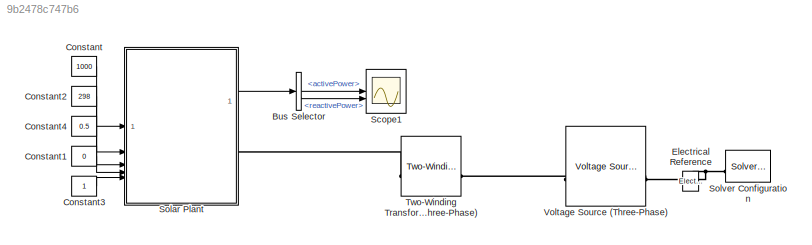
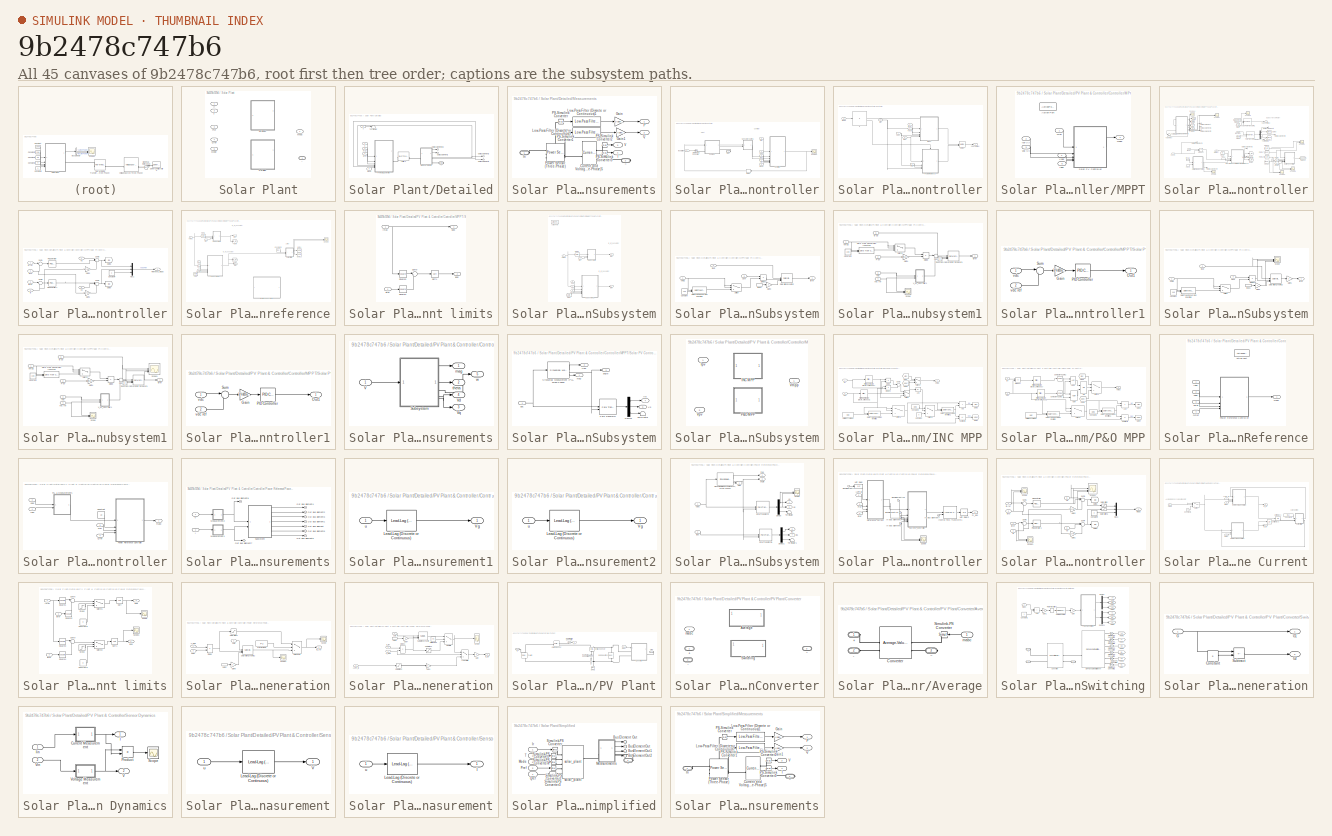
[diagram: thumbnail index - all 45 canvases of the model, root first then tree order]
MODEL slx_9b2478c747b6
KIND model
CONFIG AbsTol = auto
CONFIG EnableMultiTasking = off
CONFIG FixedStep = auto
CONFIG MaxStep = auto
CONFIG MinStep = auto
CONFIG PostLoadFcn = SolarPlantParam;
CONFIG RelTol = 1e-3
CONFIG SampleTimeConstraint = Unconstrained
CONFIG SolverName = VariableStepAuto
CONFIG StartTime = 0.0
CONFIG StopTime = 5
BLOCK [BusSelector] Bus Selector
  OutputSignals = activePower,reactivePower
BLOCK [Constant] Constant
  SampleTime = -1
  Value = 1000
BLOCK [Constant] Constant1
  SampleTime = -1
  Value = 0
BLOCK [Constant] Constant2
  SampleTime = -1
  Value = 298
BLOCK [Constant] Constant3
  SampleTime = -1
BLOCK [Constant] Constant4
  SampleTime = -1
  Value = 0.5
BLOCK [Reference] Electrical Reference  REF=fl_lib/Electrical/Electrical Elements/Electrical Reference
  NameLocation = right
  SourceBlock = fl_lib/Electrical/Electrical Elements/Electrical Reference
  SourceType = Electrical Reference
BLOCK [Scope] Scope1
  ActiveDisplayYMaximum = 4.8154652634596129
  ActiveDisplayYMinimum = -7.3875901679615126
  DataLoggingVariableName = ScopeData12
  Floating = off
  GraphicalSettings = {"Style":{"BackgroundColor":[0.12941176470588237,0.12941176470588237,0.12941176470588237],"AxesColor":[0.07058823529411765,0.07058823529411765,0.07058823529411765],"LabelsColor":[0.8509803921568627,0.8509803921568627,0.8509803921568627],"PreserveColors":false,"Visible":[true,true],"LineStyle":["-","-"],"LineWidth":[1.5,1.5],"BarWidth":[0.9,0.9],"LineColor":["auto","auto"],"LineFaceAlpha":[1,1],"Li...<+2136ch>
  MultipleDisplayCache = [{"MaxYLimMag":70.120334385785668,"MaxYLimReal":4.8154652634596129,"MinYLimMag":0,"MinYLimReal":-7.3875901679615126,"PlotAsMagnitudePhase":false,"ShowGrid":true,"ShowLegend":false,"Title":"%<SignalLabel>","YLabel":""}]
  NumInputPorts = 2
  ScopeFrameLocation = window
  WasSavedAsWebScope = on
  WindowPosition = [2023.000000,453.000000,563.000000,430.000000,]
BLOCK [SubSystem] Solar Plant
  CopyFcn = set_param(gcbh,'LinkStatus','none');
  LabelModeActiveChoice = Detailed
  Variant = on
  VariantControlMode = label
BLOCK [SubSystem] Solar Plant/Detailed
  VariantControl = Detailed
BLOCK [Inport] Solar Plant/Detailed/Ir
BLOCK [Reference] Solar Plant/Detailed/L Filter2  REF=ee_lib/Passive/RLC Assemblies/RLC (Three-Phase)
  SourceBlock = ee_lib/Passive/RLC Assemblies/RLC (Three-Phase)
  SourceType = RLC (Three-Phase)
BLOCK [SubSystem] Solar Plant/Detailed/Measurements
BLOCK [Reference] Solar Plant/Detailed/Measurements/Current and Voltage Sensor (Three-Phase)5  REF=ee_lib/Sensors &
Transducers/Current and Voltage
Sensor (Three-Phase)
  SourceBlock = ee_lib/Sensors &\nTransducers/Current and Voltage\nSensor (Three-Phase)
  SourceType = Current and Voltage\nSensor (Three-Phase)
BLOCK [Gain] Solar Plant/Detailed/Measurements/Gain
  Gain = 1/(plantRating*1000)
BLOCK [Gain] Solar Plant/Detailed/Measurements/Gain1
  Gain = 1/(plantRating*1000)
BLOCK [Outport] Solar Plant/Detailed/Measurements/I
  Port = 4
BLOCK [PMIOPort] Solar Plant/Detailed/Measurements/In
  Side = Left
BLOCK [Reference] Solar Plant/Detailed/Measurements/Low-Pass Filter (Discrete or Continuous)1  REF=eeGeneralControl/Low-Pass Filter
(Discrete or Continuous)
  SourceBlock = eeGeneralControl/Low-Pass Filter\n(Discrete or Continuous)
  SourceType = Low-Pass Filter (Discrete or Continuous)
BLOCK [Reference] Solar Plant/Detailed/Measurements/Low-Pass Filter (Discrete or Continuous)2  REF=eeGeneralControl/Low-Pass Filter
(Discrete or Continuous)
  SourceBlock = eeGeneralControl/Low-Pass Filter\n(Discrete or Continuous)
  SourceType = Low-Pass Filter (Discrete or Continuous)
BLOCK [Outport] Solar Plant/Detailed/Measurements/P
BLOCK [Reference] Solar Plant/Detailed/Measurements/PS-Simulink Converter  REF=nesl_utility/PS-Simulink
Converter
  SourceBlock = nesl_utility/PS-Simulink\nConverter
  SourceType = PS-Simulink\nConverter
BLOCK [Reference] Solar Plant/Detailed/Measurements/PS-Simulink Converter1  REF=nesl_utility/PS-Simulink
Converter
  SourceBlock = nesl_utility/PS-Simulink\nConverter
  SourceType = PS-Simulink\nConverter
BLOCK [Reference] Solar Plant/Detailed/Measurements/PS-Simulink Converter2  REF=nesl_utility/PS-Simulink
Converter
  SourceBlock = nesl_utility/PS-Simulink\nConverter
  SourceType = PS-Simulink\nConverter
BLOCK [Reference] Solar Plant/Detailed/Measurements/PS-Simulink Converter3  REF=nesl_utility/PS-Simulink
Converter
  SourceBlock = nesl_utility/PS-Simulink\nConverter
  SourceType = PS-Simulink\nConverter
BLOCK [Reference] Solar Plant/Detailed/Measurements/Power Sensor (Three-Phase)  REF=ee_lib/Sensors &
Transducers/Power Sensor
(Three-Phase)
  SourceBlock = ee_lib/Sensors &\nTransducers/Power Sensor\n(Three-Phase)
  SourceType = Power Sensor\n(Three-Phase)
BLOCK [Outport] Solar Plant/Detailed/Measurements/Q
  Port = 2
BLOCK [Outport] Solar Plant/Detailed/Measurements/V
  Port = 3
BLOCK [PMIOPort] Solar Plant/Detailed/Measurements/~
  Port = 2
  Side = Right
BLOCK [Inport] Solar Plant/Detailed/Mode
  Port = 5
BLOCK [Outport] Solar Plant/Detailed/Out Bus Element1
BLOCK [Outport] Solar Plant/Detailed/Out Bus Element2
BLOCK [Outport] Solar Plant/Detailed/Out Bus Element23
BLOCK [Outport] Solar Plant/Detailed/Out Bus Element3
BLOCK [SubSystem] Solar Plant/Detailed/PV Plant & Controller
BLOCK [SubSystem] Solar Plant/Detailed/PV Plant & Controller/Controller
BLOCK [Inport] Solar Plant/Detailed/PV Plant & Controller/Controller/Iabc
  Port = 5
BLOCK [If] Solar Plant/Detailed/PV Plant & Controller/Controller/If
BLOCK [SubSystem] Solar Plant/Detailed/PV Plant & Controller/Controller/MPPT
  TreatAsAtomicUnit = on
BLOCK [ActionPort] Solar Plant/Detailed/PV Plant & Controller/Controller/MPPT/Action Port
  ActionPortLabel = if(u1 > 0)
BLOCK [Inport] Solar Plant/Detailed/PV Plant & Controller/Controller/MPPT/Iabc
  Port = 5
BLOCK [Inport] Solar Plant/Detailed/PV Plant & Controller/Controller/MPPT/Qref
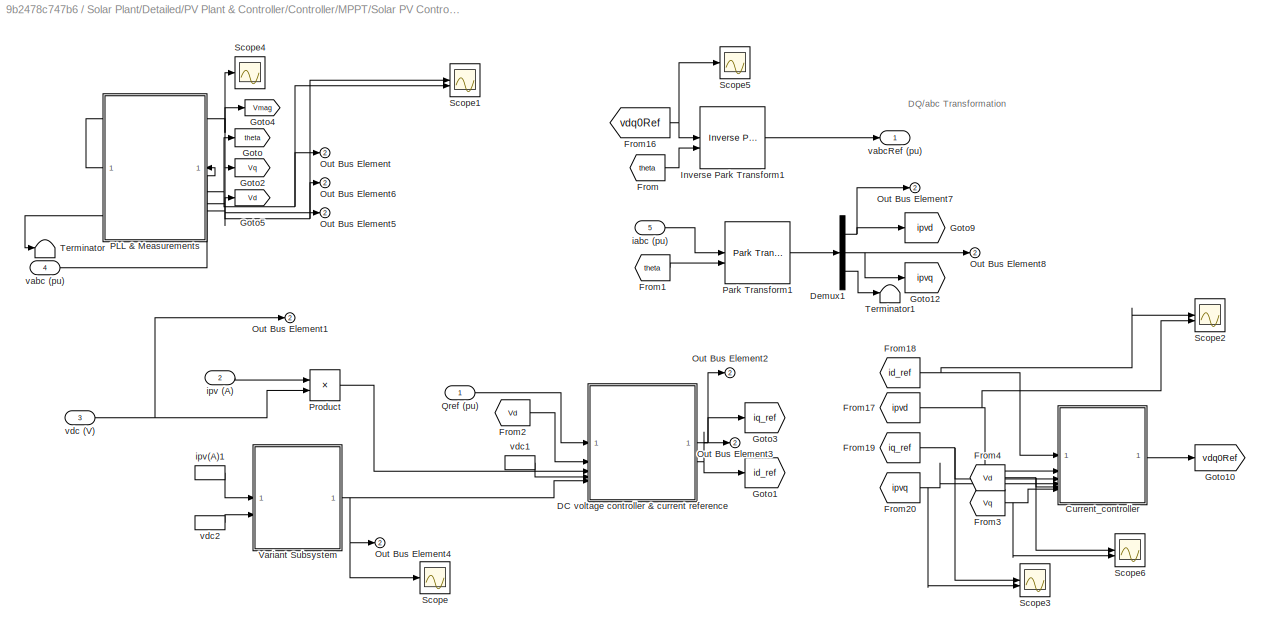
BLOCK [SubSystem] Solar Plant/Detailed/PV Plant & Controller/Controller/MPPT/Solar PV Controller
  CloseFcn = ee_sli_rtmsupport( 'closefcn', gcbh );
  CopyFcn = ee_sli_rtmsupport( 'copyfcn', gcbh );
  DeleteFcn = ee_sli_rtmsupport( 'deletefcn', gcbh );
  LoadFcn = ee_sli_rtmsupport( 'loadfcn', gcbh );
  ModelCloseFcn = ee_sli_rtmsupport( 'modelclosefcn', gcbh );
  OpenFcn = ee_sli_rtmsupport( 'openfcn', gcbh );
  PostSaveFcn = ee_sli_rtmsupport( 'postsavefcn', gcbh );
  PreCopyFcn = ee_sli_rtmsupport( 'precopyfcn', gcbh );
  PreDeleteFcn = ee_sli_rtmsupport( 'predeletefcn', gcbh );
BLOCK [SubSystem] Solar Plant/Detailed/PV Plant & Controller/Controller/MPPT/Solar PV Controller/Current_controller
  SystemSampleTime = sampleTime
BLOCK [Constant] Solar Plant/Detailed/PV Plant & Controller/Controller/MPPT/Solar PV Controller/Current_controller/Constant4
  Value = 0
BLOCK [Gain] Solar Plant/Detailed/PV Plant & Controller/Controller/MPPT/Solar PV Controller/Current_controller/Gain1
  Gain = 2*1*pi*frequency*L/zBase
BLOCK [Gain] Solar Plant/Detailed/PV Plant & Controller/Controller/MPPT/Solar PV Controller/Current_controller/Gain2
  Gain = 2*1*pi*frequency*L/zBase
BLOCK [Goto] Solar Plant/Detailed/PV Plant & Controller/Controller/MPPT/Solar PV Controller/Current_controller/Goto8
  GotoTag = Ed
BLOCK [Goto] Solar Plant/Detailed/PV Plant & Controller/Controller/MPPT/Solar PV Controller/Current_controller/Goto9
  GotoTag = Eq
BLOCK [Mux] Solar Plant/Detailed/PV Plant & Controller/Controller/MPPT/Solar PV Controller/Current_controller/Mux1
  DisplayOption = bar
  Inputs = 3
BLOCK [Reference] Solar Plant/Detailed/PV Plant & Controller/Controller/MPPT/Solar PV Controller/Current_controller/PID Controller  REF=slpidlib/PID Controller
  SourceBlock = slpidlib/PID Controller
  SourceType = PID 1dof
BLOCK [Reference] Solar Plant/Detailed/PV Plant & Controller/Controller/MPPT/Solar PV Controller/Current_controller/PID Controller1  REF=slpidlib/PID Controller
  SourceBlock = slpidlib/PID Controller
  SourceType = PID 1dof
BLOCK [Outport] Solar Plant/Detailed/PV Plant & Controller/Controller/MPPT/Solar PV Controller/Current_controller/Refrence_mdq0
  IconDisplay = Signal name
BLOCK [Sum] Solar Plant/Detailed/PV Plant & Controller/Controller/MPPT/Solar PV Controller/Current_controller/Sum1
  Inputs = |+-
BLOCK [Sum] Solar Plant/Detailed/PV Plant & Controller/Controller/MPPT/Solar PV Controller/Current_controller/Sum3
  Inputs = |++-
BLOCK [Sum] Solar Plant/Detailed/PV Plant & Controller/Controller/MPPT/Solar PV Controller/Current_controller/Sum4
  Inputs = |+++
BLOCK [Sum] Solar Plant/Detailed/PV Plant & Controller/Controller/MPPT/Solar PV Controller/Current_controller/Sum5
  Inputs = |+-
BLOCK [Inport] Solar Plant/Detailed/PV Plant & Controller/Controller/MPPT/Solar PV Controller/Current_controller/Vd
  Port = 5
BLOCK [Inport] Solar Plant/Detailed/PV Plant & Controller/Controller/MPPT/Solar PV Controller/Current_controller/Vq
  Port = 6
BLOCK [Inport] Solar Plant/Detailed/PV Plant & Controller/Controller/MPPT/Solar PV Controller/Current_controller/id-ref
  IconDisplay = Signal name
BLOCK [Inport] Solar Plant/Detailed/PV Plant & Controller/Controller/MPPT/Solar PV Controller/Current_controller/ipvd
  IconDisplay = Signal name
  Port = 2
BLOCK [Inport] Solar Plant/Detailed/PV Plant & Controller/Controller/MPPT/Solar PV Controller/Current_controller/iq
  IconDisplay = Signal name
  Port = 4
BLOCK [Inport] Solar Plant/Detailed/PV Plant & Controller/Controller/MPPT/Solar PV Controller/Current_controller/iqref
  IconDisplay = Signal name
  Port = 3
BLOCK [SubSystem] Solar Plant/Detailed/PV Plant & Controller/Controller/MPPT/Solar PV Controller/DC voltage controller & current reference
  SystemSampleTime = sampleTime
BLOCK [Constant] Solar Plant/Detailed/PV Plant & Controller/Controller/MPPT/Solar PV Controller/DC voltage controller & current reference/Constant1
  Value = iMax
BLOCK [SubSystem] Solar Plant/Detailed/PV Plant & Controller/Controller/MPPT/Solar PV Controller/DC voltage controller & current reference/Current limits
BLOCK [Inport] Solar Plant/Detailed/PV Plant & Controller/Controller/MPPT/Solar PV Controller/DC voltage controller & current reference/Current limits/Imax
BLOCK [Sqrt] Solar Plant/Detailed/PV Plant & Controller/Controller/MPPT/Solar PV Controller/DC voltage controller & current reference/Current limits/Sqrt1
BLOCK [Math] Solar Plant/Detailed/PV Plant & Controller/Controller/MPPT/Solar PV Controller/DC voltage controller & current reference/Current limits/Square3
  Operator = square
BLOCK [Math] Solar Plant/Detailed/PV Plant & Controller/Controller/MPPT/Solar PV Controller/DC voltage controller & current reference/Current limits/Square4
  Operator = square
BLOCK [Sum] Solar Plant/Detailed/PV Plant & Controller/Controller/MPPT/Solar PV Controller/DC voltage controller & current reference/Current limits/Sum9
  Inputs = |+-
BLOCK [Inport] Solar Plant/Detailed/PV Plant & Controller/Controller/MPPT/Solar PV Controller/DC voltage controller & current reference/Current limits/idref
  Port = 2
BLOCK [Outport] Solar Plant/Detailed/PV Plant & Controller/Controller/MPPT/Solar PV Controller/DC voltage controller & current reference/Current limits/iubd
BLOCK [Outport] Solar Plant/Detailed/PV Plant & Controller/Controller/MPPT/Solar PV Controller/DC voltage controller & current reference/Current limits/iubq
  Port = 2
BLOCK [From] Solar Plant/Detailed/PV Plant & Controller/Controller/MPPT/Solar PV Controller/DC voltage controller & current reference/From
  GotoTag = ubid
BLOCK [From] Solar Plant/Detailed/PV Plant & Controller/Controller/MPPT/Solar PV Controller/DC voltage controller & current reference/From1
  GotoTag = ubiq
BLOCK [Goto] Solar Plant/Detailed/PV Plant & Controller/Controller/MPPT/Solar PV Controller/DC voltage controller & current reference/Goto
  GotoTag = iq_ref
BLOCK [Goto] Solar Plant/Detailed/PV Plant & Controller/Controller/MPPT/Solar PV Controller/DC voltage controller & current reference/Goto1
  GotoTag = id_ref
BLOCK [Goto] Solar Plant/Detailed/PV Plant & Controller/Controller/MPPT/Solar PV Controller/DC voltage controller & current reference/Goto13
  GotoTag = ubiq
BLOCK [Goto] Solar Plant/Detailed/PV Plant & Controller/Controller/MPPT/Solar PV Controller/DC voltage controller & current reference/Goto4
  GotoTag = ubid
BLOCK [SubSystem] Solar Plant/Detailed/PV Plant & Controller/Controller/MPPT/Solar PV Controller/DC voltage controller & current reference/If Action Subsystem
  Commented = on
  TreatAsAtomicUnit = on
BLOCK [ActionPort] Solar Plant/Detailed/PV Plant & Controller/Controller/MPPT/Solar PV Controller/DC voltage controller & current reference/If Action Subsystem/Action Port
BLOCK [From] Solar Plant/Detailed/PV Plant & Controller/Controller/MPPT/Solar PV Controller/DC voltage controller & current reference/If Action Subsystem/From
  GotoTag = ubid
BLOCK [From] Solar Plant/Detailed/PV Plant & Controller/Controller/MPPT/Solar PV Controller/DC voltage controller & current reference/If Action Subsystem/From1
  GotoTag = ubiq
BLOCK [Inport] Solar Plant/Detailed/PV Plant & Controller/Controller/MPPT/Solar PV Controller/DC voltage controller & current reference/If Action Subsystem/P pv
  Port = 3
BLOCK [Inport] Solar Plant/Detailed/PV Plant & Controller/Controller/MPPT/Solar PV Controller/DC voltage controller & current reference/If Action Subsystem/Q ref
BLOCK [SubSystem] Solar Plant/Detailed/PV Plant & Controller/Controller/MPPT/Solar PV Controller/DC voltage controller & current reference/If Action Subsystem/Subsystem
BLOCK [Constant] Solar Plant/Detailed/PV Plant & Controller/Controller/MPPT/Solar PV Controller/DC voltage controller & current reference/If Action Subsystem/Subsystem/Constant
  Value = 1e-3
BLOCK [Reference] Solar Plant/Detailed/PV Plant & Controller/Controller/MPPT/Solar PV Controller/DC voltage controller & current reference/If Action Subsystem/Subsystem/Data Type Conversion Inherited  REF=simulink/Signal
Attributes/Data Type
Conversion
Inherited
  SourceBlock = simulink/Signal\nAttributes/Data Type\nConversion\nInherited
  SourceType = Conversion Inherited
BLOCK [Product] Solar Plant/Detailed/PV Plant & Controller/Controller/MPPT/Solar PV Controller/DC voltage controller & current reference/If Action Subsystem/Subsystem/Divide2
  Inputs = */
BLOCK [Gain] Solar Plant/Detailed/PV Plant & Controller/Controller/MPPT/Solar PV Controller/DC voltage controller & current reference/If Action Subsystem/Subsystem/Gain3
  Gain = -1
BLOCK [Inport] Solar Plant/Detailed/PV Plant & Controller/Controller/MPPT/Solar PV Controller/DC voltage controller & current reference/If Action Subsystem/Subsystem/Q ref
  Port = 3
BLOCK [Reference] Solar Plant/Detailed/PV Plant & Controller/Controller/MPPT/Solar PV Controller/DC voltage controller & current reference/If Action Subsystem/Subsystem/Saturation Dynamic2  REF=simulink/Discontinuities/Saturation
Dynamic
  SourceBlock = simulink/Discontinuities/Saturation\nDynamic
  SourceType = Saturation Dynamic
BLOCK [Switch] Solar Plant/Detailed/PV Plant & Controller/Controller/MPPT/Solar PV Controller/DC voltage controller & current reference/If Action Subsystem/Subsystem/Switch
  Criteria = u2 ~= 0
  InputSameDT = off
  SaturateOnIntegerOverflow = off
BLOCK [Inport] Solar Plant/Detailed/PV Plant & Controller/Controller/MPPT/Solar PV Controller/DC voltage controller & current reference/If Action Subsystem/Subsystem/V mag
BLOCK [Inport] Solar Plant/Detailed/PV Plant & Controller/Controller/MPPT/Solar PV Controller/DC voltage controller & current reference/If Action Subsystem/Subsystem/iq ub
  Port = 2
BLOCK [InportShadow] Solar Plant/Detailed/PV Plant & Controller/Controller/MPPT/Solar PV Controller/DC voltage controller & current reference/If Action Subsystem/Subsystem/iq ub1
  Port = 2
BLOCK [Outport] Solar Plant/Detailed/PV Plant & Controller/Controller/MPPT/Solar PV Controller/DC voltage controller & current reference/If Action Subsystem/Subsystem/iqref
BLOCK [SubSystem] Solar Plant/Detailed/PV Plant & Controller/Controller/MPPT/Solar PV Controller/DC voltage controller & current reference/If Action Subsystem/Subsystem1
BLOCK [Constant] Solar Plant/Detailed/PV Plant & Controller/Controller/MPPT/Solar PV Controller/DC voltage controller & current reference/If Action Subsystem/Subsystem1/Constant
  Value = 1e-3
BLOCK [Constant] Solar Plant/Detailed/PV Plant & Controller/Controller/MPPT/Solar PV Controller/DC voltage controller & current reference/If Action Subsystem/Subsystem1/Constant4
  Value = 0
BLOCK [Reference] Solar Plant/Detailed/PV Plant & Controller/Controller/MPPT/Solar PV Controller/DC voltage controller & current reference/If Action Subsystem/Subsystem1/Data Type Conversion Inherited  REF=simulink/Signal
Attributes/Data Type
Conversion
Inherited
  SourceBlock = simulink/Signal\nAttributes/Data Type\nConversion\nInherited
  SourceType = Conversion Inherited
BLOCK [Product] Solar Plant/Detailed/PV Plant & Controller/Controller/MPPT/Solar PV Controller/DC voltage controller & current reference/If Action Subsystem/Subsystem1/Divide
  Inputs = /*
BLOCK [Gain] Solar Plant/Detailed/PV Plant & Controller/Controller/MPPT/Solar PV Controller/DC voltage controller & current reference/If Action Subsystem/Subsystem1/Gain4
  Gain = 1/(mVAbase)
BLOCK [Inport] Solar Plant/Detailed/PV Plant & Controller/Controller/MPPT/Solar PV Controller/DC voltage controller & current reference/If Action Subsystem/Subsystem1/P pv
  Port = 2
BLOCK [Reference] Solar Plant/Detailed/PV Plant & Controller/Controller/MPPT/Solar PV Controller/DC voltage controller & current reference/If Action Subsystem/Subsystem1/Saturation Dynamic1  REF=simulink/Discontinuities/Saturation
Dynamic
  SourceBlock = simulink/Discontinuities/Saturation\nDynamic
  SourceType = Saturation Dynamic
BLOCK [Scope] Solar Plant/Detailed/PV Plant & Controller/Controller/MPPT/Solar PV Controller/DC voltage controller & current reference/If Action Subsystem/Subsystem1/Scope
  ActiveDisplayYMaximum = 503630.2665
  ActiveDisplayYMinimum = -55957.97767
  Floating = off
  GraphicalSettings = {"GraphicalSettings":{"LegacySettings":true,"Style":{"AxesScalingProperties":{"ScaleAxesLimitsAtStop":false},"Style":{"AxesColor":"[0 0 0]","ChannelNames":["",""],"ColorOrder":"[1 0.909803921568627 0.392156862745098;0.149019607843137 0.549019607843137 0.866666666666667;0.96078431372549 0.466666666666667 0.16078431372549;0.286274509803922 0.858823529411765 0.250980392156863;0.752941176470588 0.3607...<+588ch>
  LayoutDimensionsString = [2 1]
  MultipleDisplayCache = [{"MaxYLimMag":503630.2665,"MaxYLimReal":503630.2665,"MinYLimMag":0,"MinYLimReal":-55957.97767,"PlotAsMagnitudePhase":false,"ShowGrid":true,"ShowLegend":false,"Title":"%<SignalLabel>","YLabel":""},{"MaxYLimMag":503649.79638,"MaxYLimReal":503649.7965,"MinYLimMag":0,"MinYLimReal":-55977.50767,"PlotAsMagnitudePhase":false,"ShowGrid":true,"ShowLegend":false,"Title":"%<SignalLabel>","YLabel":""}]
  NumInputPorts = 2
  WasSavedAsWebScope = on
BLOCK [Sum] Solar Plant/Detailed/PV Plant & Controller/Controller/MPPT/Solar PV Controller/DC voltage controller & current reference/If Action Subsystem/Subsystem1/Sum
  Inputs = |++
BLOCK [Switch] Solar Plant/Detailed/PV Plant & Controller/Controller/MPPT/Solar PV Controller/DC voltage controller & current reference/If Action Subsystem/Subsystem1/Switch
  Criteria = u2 ~= 0
  InputSameDT = off
  SaturateOnIntegerOverflow = off
BLOCK [SubSystem] Solar Plant/Detailed/PV Plant & Controller/Controller/MPPT/Solar PV Controller/DC voltage controller & current reference/If Action Subsystem/Subsystem1/V_dc_Controller1
BLOCK [Gain] Solar Plant/Detailed/PV Plant & Controller/Controller/MPPT/Solar PV Controller/DC voltage controller & current reference/If Action Subsystem/Subsystem1/V_dc_Controller1/Gain
  Gain = 1/VdcBase
BLOCK [Outport] Solar Plant/Detailed/PV Plant & Controller/Controller/MPPT/Solar PV Controller/DC voltage controller & current reference/If Action Subsystem/Subsystem1/V_dc_Controller1/Out1
BLOCK [Reference] Solar Plant/Detailed/PV Plant & Controller/Controller/MPPT/Solar PV Controller/DC voltage controller & current reference/If Action Subsystem/Subsystem1/V_dc_Controller1/PID Controller  REF=slpidlib/PID Controller
  SourceBlock = slpidlib/PID Controller
  SourceType = PID 1dof
BLOCK [Sum] Solar Plant/Detailed/PV Plant & Controller/Controller/MPPT/Solar PV Controller/DC voltage controller & current reference/If Action Subsystem/Subsystem1/V_dc_Controller1/Sum
  Inputs = |+-
BLOCK [Inport] Solar Plant/Detailed/PV Plant & Controller/Controller/MPPT/Solar PV Controller/DC voltage controller & current reference/If Action Subsystem/Subsystem1/V_dc_Controller1/vdc
BLOCK [Inport] Solar Plant/Detailed/PV Plant & Controller/Controller/MPPT/Solar PV Controller/DC voltage controller & current reference/If Action Subsystem/Subsystem1/V_dc_Controller1/vdc ref
  Port = 2
BLOCK [Inport] Solar Plant/Detailed/PV Plant & Controller/Controller/MPPT/Solar PV Controller/DC voltage controller & current reference/If Action Subsystem/Subsystem1/Vmag
BLOCK [Inport] Solar Plant/Detailed/PV Plant & Controller/Controller/MPPT/Solar PV Controller/DC voltage controller & current reference/If Action Subsystem/Subsystem1/id ub
  Port = 5
BLOCK [Outport] Solar Plant/Detailed/PV Plant & Controller/Controller/MPPT/Solar PV Controller/DC voltage controller & current reference/If Action Subsystem/Subsystem1/idref
BLOCK [Inport] Solar Plant/Detailed/PV Plant & Controller/Controller/MPPT/Solar PV Controller/DC voltage controller & current reference/If Action Subsystem/Subsystem1/vdc
  Port = 3
BLOCK [Inport] Solar Plant/Detailed/PV Plant & Controller/Controller/MPPT/Solar PV Controller/DC voltage controller & current reference/If Action Subsystem/Subsystem1/vdc ref
  Port = 4
BLOCK [Inport] Solar Plant/Detailed/PV Plant & Controller/Controller/MPPT/Solar PV Controller/DC voltage controller & current reference/If Action Subsystem/Vmag
  Port = 2
BLOCK [Outport] Solar Plant/Detailed/PV Plant & Controller/Controller/MPPT/Solar PV Controller/DC voltage controller & current reference/If Action Subsystem/id ref
  Port = 2
BLOCK [Outport] Solar Plant/Detailed/PV Plant & Controller/Controller/MPPT/Solar PV Controller/DC voltage controller & current reference/If Action Subsystem/iq ref
BLOCK [Inport] Solar Plant/Detailed/PV Plant & Controller/Controller/MPPT/Solar PV Controller/DC voltage controller & current reference/If Action Subsystem/vdc
  Port = 4
BLOCK [Inport] Solar Plant/Detailed/PV Plant & Controller/Controller/MPPT/Solar PV Controller/DC voltage controller & current reference/If Action Subsystem/vdc ref
  Port = 5
BLOCK [Inport] Solar Plant/Detailed/PV Plant & Controller/Controller/MPPT/Solar PV Controller/DC voltage controller & current reference/P pv
  Port = 3
BLOCK [Inport] Solar Plant/Detailed/PV Plant & Controller/Controller/MPPT/Solar PV Controller/DC voltage controller & current reference/Q ref
BLOCK [Scope] Solar Plant/Detailed/PV Plant & Controller/Controller/MPPT/Solar PV Controller/DC voltage controller & current reference/Scope
  ActiveDisplayYMaximum = 1.35
  ActiveDisplayYMinimum = -0.15
  DataLoggingVariableName = ScopeData9
  Floating = off
  GraphicalSettings = {"GraphicalSettings":{"LegacySettings":true,"Style":{"Style":{"AxesColor":"[0 0 0]","ChannelNames":[""],"ColorOrder":"[1 0.909803921568627 0.392156862745098;0.149019607843137 0.549019607843137 0.866666666666667;0.96078431372549 0.466666666666667 0.16078431372549;0.286274509803922 0.858823529411765 0.250980392156863;0.752941176470588 0.36078431372549 0.984313725490196;0.423529411764706 0.9568627450...<+504ch>
  MultipleDisplayCache = [{"MaxYLimMag":1.35,"MaxYLimReal":1.35,"MinYLimMag":0,"MinYLimReal":-0.15,"PlotAsMagnitudePhase":false,"ShowGrid":true,"ShowLegend":false,"Title":"%<SignalLabel>","YLabel":""}]
  NumInputPorts = 2
  WasSavedAsWebScope = on
BLOCK [SubSystem] Solar Plant/Detailed/PV Plant & Controller/Controller/MPPT/Solar PV Controller/DC voltage controller & current reference/Subsystem
BLOCK [Constant] Solar Plant/Detailed/PV Plant & Controller/Controller/MPPT/Solar PV Controller/DC voltage controller & current reference/Subsystem/Constant
  Value = 1e-3
BLOCK [Reference] Solar Plant/Detailed/PV Plant & Controller/Controller/MPPT/Solar PV Controller/DC voltage controller & current reference/Subsystem/Data Type Conversion Inherited  REF=simulink/Signal
Attributes/Data Type
Conversion
Inherited
  SourceBlock = simulink/Signal\nAttributes/Data Type\nConversion\nInherited
  SourceType = Conversion Inherited
BLOCK [Product] Solar Plant/Detailed/PV Plant & Controller/Controller/MPPT/Solar PV Controller/DC voltage controller & current reference/Subsystem/Divide2
  Inputs = */
BLOCK [Gain] Solar Plant/Detailed/PV Plant & Controller/Controller/MPPT/Solar PV Controller/DC voltage controller & current reference/Subsystem/Gain1
  Gain = -1
BLOCK [Gain] Solar Plant/Detailed/PV Plant & Controller/Controller/MPPT/Solar PV Controller/DC voltage controller & current reference/Subsystem/Gain3
  Gain = -1
BLOCK [Inport] Solar Plant/Detailed/PV Plant & Controller/Controller/MPPT/Solar PV Controller/DC voltage controller & current reference/Subsystem/Q ref
  Port = 3
BLOCK [Reference] Solar Plant/Detailed/PV Plant & Controller/Controller/MPPT/Solar PV Controller/DC voltage controller & current reference/Subsystem/Saturation Dynamic2  REF=simulink/Discontinuities/Saturation
Dynamic
  SourceBlock = simulink/Discontinuities/Saturation\nDynamic
  SourceType = Saturation Dynamic
BLOCK [Scope] Solar Plant/Detailed/PV Plant & Controller/Controller/MPPT/Solar PV Controller/DC voltage controller & current reference/Subsystem/Scope
  ActiveDisplayYMaximum = 1.39248
  ActiveDisplayYMinimum = 1.32868
  DataLoggingVariableName = ScopeData8
  Floating = off
  GraphicalSettings = {"GraphicalSettings":{"LegacySettings":true,"Style":{"Style":{"AxesColor":"[0 0 0]","ChannelNames":["","",""],"ColorOrder":"[1 0.909803921568627 0.392156862745098;0.149019607843137 0.549019607843137 0.866666666666667;0.96078431372549 0.466666666666667 0.16078431372549;0.286274509803922 0.858823529411765 0.250980392156863;0.752941176470588 0.36078431372549 0.984313725490196;0.423529411764706 0.9568...<+576ch>  <repeated x3 — deduplicated; at blocks: Scope, Scope1>
  LayoutDimensionsString = [3 1]
  MultipleDisplayCache = [{"MaxYLimMag":1.39248,"MaxYLimReal":1.39248,"MinYLimMag":1.32868,"MinYLimReal":1.32868,"PlotAsMagnitudePhase":false,"ShowGrid":true,"ShowLegend":false,"Title":"%<SignalLabel>","YLabel":""},{"MaxYLimMag":1.5,"MaxYLimReal":1,"MinYLimMag":0,"MinYLimReal":-1,"PlotAsMagnitudePhase":false,"ShowGrid":true,"ShowLegend":false,"Title":"%<SignalLabel>","YLabel":""},{"MaxYLimMag":1.5,"MaxYLimReal":-1.32868,"...<+139ch>
  NumInputPorts = 3
  WasSavedAsWebScope = on
BLOCK [Switch] Solar Plant/Detailed/PV Plant & Controller/Controller/MPPT/Solar PV Controller/DC voltage controller & current reference/Subsystem/Switch
  Criteria = u2 ~= 0
  InputSameDT = off
  SaturateOnIntegerOverflow = off
BLOCK [Inport] Solar Plant/Detailed/PV Plant & Controller/Controller/MPPT/Solar PV Controller/DC voltage controller & current reference/Subsystem/V mag
BLOCK [Inport] Solar Plant/Detailed/PV Plant & Controller/Controller/MPPT/Solar PV Controller/DC voltage controller & current reference/Subsystem/iq ub
  Port = 2
BLOCK [InportShadow] Solar Plant/Detailed/PV Plant & Controller/Controller/MPPT/Solar PV Controller/DC voltage controller & current reference/Subsystem/iq ub1
  Port = 2
BLOCK [Outport] Solar Plant/Detailed/PV Plant & Controller/Controller/MPPT/Solar PV Controller/DC voltage controller & current reference/Subsystem/iqref
BLOCK [SubSystem] Solar Plant/Detailed/PV Plant & Controller/Controller/MPPT/Solar PV Controller/DC voltage controller & current reference/Subsystem1
BLOCK [Constant] Solar Plant/Detailed/PV Plant & Controller/Controller/MPPT/Solar PV Controller/DC voltage controller & current reference/Subsystem1/Constant
  Value = 1e-3
BLOCK [Constant] Solar Plant/Detailed/PV Plant & Controller/Controller/MPPT/Solar PV Controller/DC voltage controller & current reference/Subsystem1/Constant4
  Value = 0
BLOCK [Reference] Solar Plant/Detailed/PV Plant & Controller/Controller/MPPT/Solar PV Controller/DC voltage controller & current reference/Subsystem1/Data Type Conversion Inherited  REF=simulink/Signal
Attributes/Data Type
Conversion
Inherited
  SourceBlock = simulink/Signal\nAttributes/Data Type\nConversion\nInherited
  SourceType = Conversion Inherited
BLOCK [Product] Solar Plant/Detailed/PV Plant & Controller/Controller/MPPT/Solar PV Controller/DC voltage controller & current reference/Subsystem1/Divide
  Inputs = /*
BLOCK [Gain] Solar Plant/Detailed/PV Plant & Controller/Controller/MPPT/Solar PV Controller/DC voltage controller & current reference/Subsystem1/Gain4
  Gain = 1/(mVAbase)
BLOCK [Inport] Solar Plant/Detailed/PV Plant & Controller/Controller/MPPT/Solar PV Controller/DC voltage controller & current reference/Subsystem1/P pv
  Port = 2
BLOCK [Reference] Solar Plant/Detailed/PV Plant & Controller/Controller/MPPT/Solar PV Controller/DC voltage controller & current reference/Subsystem1/Saturation Dynamic1  REF=simulink/Discontinuities/Saturation
Dynamic
  SourceBlock = simulink/Discontinuities/Saturation\nDynamic
  SourceType = Saturation Dynamic
BLOCK [Scope] Solar Plant/Detailed/PV Plant & Controller/Controller/MPPT/Solar PV Controller/DC voltage controller & current reference/Subsystem1/Scope
  ActiveDisplayYMaximum = 1444.49375
  ActiveDisplayYMinimum = 715.83213
  Floating = off
  GraphicalSettings = {"GraphicalSettings":{"LegacySettings":true,"Style":{"AxesScalingProperties":{"ScaleAxesLimitsAtStop":false},"Style":{"AxesColor":"[0 0 0]","ChannelNames":[""],"ColorOrder":"[1 0.909803921568627 0.392156862745098;0.149019607843137 0.549019607843137 0.866666666666667;0.96078431372549 0.466666666666667 0.16078431372549;0.286274509803922 0.858823529411765 0.250980392156863;0.752941176470588 0.3607843...<+599ch>
  MultipleDisplayCache = [{"MaxYLimMag":1444.49375,"MaxYLimReal":1444.49375,"MinYLimMag":715.83213,"MinYLimReal":715.83213,"PlotAsMagnitudePhase":false,"ShowGrid":true,"ShowLegend":false,"Title":"%<SignalLabel>","YLabel":""}]
  NumInputPorts = 2
  WasSavedAsWebScope = on
BLOCK [Scope] Solar Plant/Detailed/PV Plant & Controller/Controller/MPPT/Solar PV Controller/DC voltage controller & current reference/Subsystem1/Scope1
  ActiveDisplayYMaximum = 2.2
  ActiveDisplayYMinimum = 0.2
  DataLoggingVariableName = ScopeData7
  Floating = off
  LayoutDimensionsString = [3 1]
  MultipleDisplayCache = [{"MaxYLimMag":2.2,"MaxYLimReal":2.2,"MinYLimMag":0.2,"MinYLimReal":0.2,"PlotAsMagnitudePhase":false,"ShowGrid":true,"ShowLegend":false,"Title":"%<SignalLabel>","YLabel":""},{"MaxYLimMag":3.0740370416408539E+11,"MaxYLimReal":2.97768,"MinYLimMag":0,"MinYLimReal":-9.88249,"PlotAsMagnitudePhase":false,"ShowGrid":true,"ShowLegend":false,"Title":"%<SignalLabel>","YLabel":""},{"MaxYLimMag":3.07403704164...<+166ch>
  NumInputPorts = 3
  WasSavedAsWebScope = on
BLOCK [Sum] Solar Plant/Detailed/PV Plant & Controller/Controller/MPPT/Solar PV Controller/DC voltage controller & current reference/Subsystem1/Sum
  Inputs = |++
BLOCK [Switch] Solar Plant/Detailed/PV Plant & Controller/Controller/MPPT/Solar PV Controller/DC voltage controller & current reference/Subsystem1/Switch
  Criteria = u2 ~= 0
  InputSameDT = off
  SaturateOnIntegerOverflow = off
BLOCK [SubSystem] Solar Plant/Detailed/PV Plant & Controller/Controller/MPPT/Solar PV Controller/DC voltage controller & current reference/Subsystem1/V_dc_Controller1
BLOCK [Gain] Solar Plant/Detailed/PV Plant & Controller/Controller/MPPT/Solar PV Controller/DC voltage controller & current reference/Subsystem1/V_dc_Controller1/Gain
  Gain = 1/VdcBase
BLOCK [Outport] Solar Plant/Detailed/PV Plant & Controller/Controller/MPPT/Solar PV Controller/DC voltage controller & current reference/Subsystem1/V_dc_Controller1/Out1
BLOCK [Reference] Solar Plant/Detailed/PV Plant & Controller/Controller/MPPT/Solar PV Controller/DC voltage controller & current reference/Subsystem1/V_dc_Controller1/PID Controller  REF=slpidlib/PID Controller
  SourceBlock = slpidlib/PID Controller
  SourceType = PID 1dof
BLOCK [Sum] Solar Plant/Detailed/PV Plant & Controller/Controller/MPPT/Solar PV Controller/DC voltage controller & current reference/Subsystem1/V_dc_Controller1/Sum
  Inputs = |+-
BLOCK [Inport] Solar Plant/Detailed/PV Plant & Controller/Controller/MPPT/Solar PV Controller/DC voltage controller & current reference/Subsystem1/V_dc_Controller1/vdc
BLOCK [Inport] Solar Plant/Detailed/PV Plant & Controller/Controller/MPPT/Solar PV Controller/DC voltage controller & current reference/Subsystem1/V_dc_Controller1/vdc ref
  Port = 2
BLOCK [Inport] Solar Plant/Detailed/PV Plant & Controller/Controller/MPPT/Solar PV Controller/DC voltage controller & current reference/Subsystem1/Vmag
BLOCK [Inport] Solar Plant/Detailed/PV Plant & Controller/Controller/MPPT/Solar PV Controller/DC voltage controller & current reference/Subsystem1/id ub
  Port = 5
BLOCK [Outport] Solar Plant/Detailed/PV Plant & Controller/Controller/MPPT/Solar PV Controller/DC voltage controller & current reference/Subsystem1/idref
BLOCK [Inport] Solar Plant/Detailed/PV Plant & Controller/Controller/MPPT/Solar PV Controller/DC voltage controller & current reference/Subsystem1/vdc
  Port = 3
BLOCK [Inport] Solar Plant/Detailed/PV Plant & Controller/Controller/MPPT/Solar PV Controller/DC voltage controller & current reference/Subsystem1/vdc ref
  Port = 4
BLOCK [Inport] Solar Plant/Detailed/PV Plant & Controller/Controller/MPPT/Solar PV Controller/DC voltage controller & current reference/Vmag
  Port = 2
BLOCK [Outport] Solar Plant/Detailed/PV Plant & Controller/Controller/MPPT/Solar PV Controller/DC voltage controller & current reference/id ref
  Port = 2
BLOCK [Outport] Solar Plant/Detailed/PV Plant & Controller/Controller/MPPT/Solar PV Controller/DC voltage controller & current reference/iq ref
BLOCK [Inport] Solar Plant/Detailed/PV Plant & Controller/Controller/MPPT/Solar PV Controller/DC voltage controller & current reference/vdc
  Port = 4
BLOCK [Inport] Solar Plant/Detailed/PV Plant & Controller/Controller/MPPT/Solar PV Controller/DC voltage controller & current reference/vdc ref
  Port = 5
BLOCK [Demux] Solar Plant/Detailed/PV Plant & Controller/Controller/MPPT/Solar PV Controller/Demux1
  Outputs = 3
BLOCK [From] Solar Plant/Detailed/PV Plant & Controller/Controller/MPPT/Solar PV Controller/From
  GotoTag = theta
BLOCK [From] Solar Plant/Detailed/PV Plant & Controller/Controller/MPPT/Solar PV Controller/From1
  GotoTag = theta
BLOCK [From] Solar Plant/Detailed/PV Plant & Controller/Controller/MPPT/Solar PV Controller/From16
  GotoTag = vdq0Ref
BLOCK [From] Solar Plant/Detailed/PV Plant & Controller/Controller/MPPT/Solar PV Controller/From17
  GotoTag = ipvd
BLOCK [From] Solar Plant/Detailed/PV Plant & Controller/Controller/MPPT/Solar PV Controller/From18
  GotoTag = id_ref
BLOCK [From] Solar Plant/Detailed/PV Plant & Controller/Controller/MPPT/Solar PV Controller/From19
  GotoTag = iq_ref
BLOCK [From] Solar Plant/Detailed/PV Plant & Controller/Controller/MPPT/Solar PV Controller/From2
  GotoTag = Vd
BLOCK [From] Solar Plant/Detailed/PV Plant & Controller/Controller/MPPT/Solar PV Controller/From20
  GotoTag = ipvq
BLOCK [From] Solar Plant/Detailed/PV Plant & Controller/Controller/MPPT/Solar PV Controller/From3
  GotoTag = Vq
BLOCK [From] Solar Plant/Detailed/PV Plant & Controller/Controller/MPPT/Solar PV Controller/From4
  GotoTag = Vd
BLOCK [Goto] Solar Plant/Detailed/PV Plant & Controller/Controller/MPPT/Solar PV Controller/Goto
  GotoTag = theta
BLOCK [Goto] Solar Plant/Detailed/PV Plant & Controller/Controller/MPPT/Solar PV Controller/Goto1
  GotoTag = id_ref
BLOCK [Goto] Solar Plant/Detailed/PV Plant & Controller/Controller/MPPT/Solar PV Controller/Goto10
  GotoTag = vdq0Ref
BLOCK [Goto] Solar Plant/Detailed/PV Plant & Controller/Controller/MPPT/Solar PV Controller/Goto12
  GotoTag = ipvq
BLOCK [Goto] Solar Plant/Detailed/PV Plant & Controller/Controller/MPPT/Solar PV Controller/Goto2
  GotoTag = Vq
BLOCK [Goto] Solar Plant/Detailed/PV Plant & Controller/Controller/MPPT/Solar PV Controller/Goto3
  GotoTag = iq_ref
BLOCK [Goto] Solar Plant/Detailed/PV Plant & Controller/Controller/MPPT/Solar PV Controller/Goto4
  GotoTag = Vmag
BLOCK [Goto] Solar Plant/Detailed/PV Plant & Controller/Controller/MPPT/Solar PV Controller/Goto5
  GotoTag = Vd
BLOCK [Goto] Solar Plant/Detailed/PV Plant & Controller/Controller/MPPT/Solar PV Controller/Goto9
  GotoTag = ipvd
BLOCK [Reference] Solar Plant/Detailed/PV Plant & Controller/Controller/MPPT/Solar PV Controller/Inverse Park Transform1  REF=eeTransforms/Inverse
Park Transform
  SourceBlock = eeTransforms/Inverse\nPark Transform
  SourceType = Inverse Park Transform
BLOCK [Outport] Solar Plant/Detailed/PV Plant & Controller/Controller/MPPT/Solar PV Controller/Out Bus Element
  Port = 2
BLOCK [Outport] Solar Plant/Detailed/PV Plant & Controller/Controller/MPPT/Solar PV Controller/Out Bus Element1
  Port = 2
BLOCK [Outport] Solar Plant/Detailed/PV Plant & Controller/Controller/MPPT/Solar PV Controller/Out Bus Element2
  Port = 2
BLOCK [Outport] Solar Plant/Detailed/PV Plant & Controller/Controller/MPPT/Solar PV Controller/Out Bus Element3
  Port = 2
BLOCK [Outport] Solar Plant/Detailed/PV Plant & Controller/Controller/MPPT/Solar PV Controller/Out Bus Element4
  Port = 2
BLOCK [Outport] Solar Plant/Detailed/PV Plant & Controller/Controller/MPPT/Solar PV Controller/Out Bus Element5
  Port = 2
BLOCK [Outport] Solar Plant/Detailed/PV Plant & Controller/Controller/MPPT/Solar PV Controller/Out Bus Element6
  Port = 2
BLOCK [Outport] Solar Plant/Detailed/PV Plant & Controller/Controller/MPPT/Solar PV Controller/Out Bus Element7
  Port = 2
BLOCK [Outport] Solar Plant/Detailed/PV Plant & Controller/Controller/MPPT/Solar PV Controller/Out Bus Element8
  Port = 2
BLOCK [SubSystem] Solar Plant/Detailed/PV Plant & Controller/Controller/MPPT/Solar PV Controller/PLL & Measurements
  NameLocation = top
BLOCK [SubSystem] Solar Plant/Detailed/PV Plant & Controller/Controller/MPPT/Solar PV Controller/PLL & Measurements/Subsystem
BLOCK [Demux] Solar Plant/Detailed/PV Plant & Controller/Controller/MPPT/Solar PV Controller/PLL & Measurements/Subsystem/Demux
  Outputs = 3
BLOCK [Reference] Solar Plant/Detailed/PV Plant & Controller/Controller/MPPT/Solar PV Controller/PLL & Measurements/Subsystem/Park Transform  REF=eeTransforms/Park Transform
  SourceBlock = eeTransforms/Park Transform
  SourceType = Park Transform
BLOCK [Reference] Solar Plant/Detailed/PV Plant & Controller/Controller/MPPT/Solar PV Controller/PLL & Measurements/Subsystem/Sinusoidal Measurement (PLL, Three-Phase)  REF=eeSinusoidalMeasurementV2/Sinusoidal Measurement
(PLL, Three-Phase)
  SourceBlock = eeSinusoidalMeasurementV2/Sinusoidal Measurement\n(PLL, Three-Phase)
  SourceType = Sinusoidal Measurement (PLL, Three-Phase)
BLOCK [Terminator] Solar Plant/Detailed/PV Plant & Controller/Controller/MPPT/Solar PV Controller/PLL & Measurements/Subsystem/Terminator
BLOCK [Outport] Solar Plant/Detailed/PV Plant & Controller/Controller/MPPT/Solar PV Controller/PLL & Measurements/Subsystem/Vd
  NameLocation = top
  Port = 4
BLOCK [Outport] Solar Plant/Detailed/PV Plant & Controller/Controller/MPPT/Solar PV Controller/PLL & Measurements/Subsystem/Vq
  NameLocation = top
  Port = 5
BLOCK [Inport] Solar Plant/Detailed/PV Plant & Controller/Controller/MPPT/Solar PV Controller/PLL & Measurements/Subsystem/abc
BLOCK [Outport] Solar Plant/Detailed/PV Plant & Controller/Controller/MPPT/Solar PV Controller/PLL & Measurements/Subsystem/angle
  Port = 3
BLOCK [Outport] Solar Plant/Detailed/PV Plant & Controller/Controller/MPPT/Solar PV Controller/PLL & Measurements/Subsystem/freq
  Port = 2
BLOCK [Outport] Solar Plant/Detailed/PV Plant & Controller/Controller/MPPT/Solar PV Controller/PLL & Measurements/Subsystem/mag
BLOCK [Inport] Solar Plant/Detailed/PV Plant & Controller/Controller/MPPT/Solar PV Controller/PLL & Measurements/V
BLOCK [Outport] Solar Plant/Detailed/PV Plant & Controller/Controller/MPPT/Solar PV Controller/PLL & Measurements/Vd
  Port = 4
BLOCK [Outport] Solar Plant/Detailed/PV Plant & Controller/Controller/MPPT/Solar PV Controller/PLL & Measurements/Vq
  Port = 3
BLOCK [Outport] Solar Plant/Detailed/PV Plant & Controller/Controller/MPPT/Solar PV Controller/PLL & Measurements/mag
BLOCK [Outport] Solar Plant/Detailed/PV Plant & Controller/Controller/MPPT/Solar PV Controller/PLL & Measurements/theta
  Port = 2
BLOCK [Outport] Solar Plant/Detailed/PV Plant & Controller/Controller/MPPT/Solar PV Controller/PLL & Measurements/w
  Port = 5
BLOCK [Reference] Solar Plant/Detailed/PV Plant & Controller/Controller/MPPT/Solar PV Controller/Park Transform1  REF=eeTransforms/Park Transform
  SourceBlock = eeTransforms/Park Transform
  SourceType = Park Transform
BLOCK [Product] Solar Plant/Detailed/PV Plant & Controller/Controller/MPPT/Solar PV Controller/Product
BLOCK [Inport] Solar Plant/Detailed/PV Plant & Controller/Controller/MPPT/Solar PV Controller/Qref (pu)
BLOCK [Scope] Solar Plant/Detailed/PV Plant & Controller/Controller/MPPT/Solar PV Controller/Scope
  ActiveDisplayYMaximum = 1441.72759
  ActiveDisplayYMinimum = 719.47133
  DataLoggingVariableName = ScopeData5
  Floating = off
  GraphicalSettings = {"GraphicalSettings":{"LegacySettings":true,"Style":{"AxesScalingProperties":{"ScaleAxesLimitsAtStop":false},"Style":{"AxesColor":"[0 0 0]","ChannelNames":[""],"ColorOrder":"[1 0.909803921568627 0.392156862745098;0.149019607843137 0.549019607843137 0.866666666666667;0.96078431372549 0.466666666666667 0.16078431372549;0.286274509803922 0.858823529411765 0.250980392156863;0.752941176470588 0.3607843...<+555ch>
  MultipleDisplayCache = [{"MaxYLimMag":1441.72759,"MaxYLimReal":1441.72759,"MinYLimMag":719.47133,"MinYLimReal":719.47133,"PlotAsMagnitudePhase":false,"ShowGrid":true,"ShowLegend":false,"Title":"%<SignalLabel>","YLabel":""}]
  NumInputPorts = 1
  WasSavedAsWebScope = on
BLOCK [Scope] Solar Plant/Detailed/PV Plant & Controller/Controller/MPPT/Solar PV Controller/Scope1
  ActiveDisplayYMaximum = 0.65726
  ActiveDisplayYMinimum = -0.55297
  DataLoggingVariableName = ScopeData6
  Floating = off
  GraphicalSettings = {"GraphicalSettings":{"LegacySettings":true,"Style":{"AxesScalingProperties":{"ScaleAxesLimitsAtStop":false},"Style":{"AxesColor":"[0 0 0]","ChannelNames":["",""],"ColorOrder":"[1 0.909803921568627 0.392156862745098;0.149019607843137 0.549019607843137 0.866666666666667;0.96078431372549 0.466666666666667 0.16078431372549;0.286274509803922 0.858823529411765 0.250980392156863;0.752941176470588 0.3607...<+615ch>
  LayoutDimensionsString = [2 1]
  MultipleDisplayCache = [{"MaxYLimMag":0.65726,"MaxYLimReal":0.65726,"MinYLimMag":0,"MinYLimReal":-0.55297,"PlotAsMagnitudePhase":false,"ShowGrid":true,"ShowLegend":false,"Title":"%<SignalLabel>","YLabel":""},{"MaxYLimMag":7.06858,"MaxYLimReal":7.06858,"MinYLimMag":0,"MinYLimReal":-0.7854,"PlotAsMagnitudePhase":false,"ShowGrid":true,"ShowLegend":false,"Title":"%<SignalLabel>","YLabel":""}]
  NumInputPorts = 2
  WasSavedAsWebScope = on
BLOCK [Scope] Solar Plant/Detailed/PV Plant & Controller/Controller/MPPT/Solar PV Controller/Scope2
  ActiveDisplayYMaximum = 1.09578
  ActiveDisplayYMinimum = 0.74203
  Floating = off
  GraphicalSettings = {"GraphicalSettings":{"LegacySettings":true,"Style":{"AxesScalingProperties":{"ScaleAxesLimitsAtStop":false},"Style":{"AxesColor":"[0 0 0]","ChannelNames":["",""],"ColorOrder":"[1 0.909803921568627 0.392156862745098;0.149019607843137 0.549019607843137 0.866666666666667;0.96078431372549 0.466666666666667 0.16078431372549;0.286274509803922 0.858823529411765 0.250980392156863;0.752941176470588 0.3607...<+601ch>
  LayoutDimensionsString = [2 1]
  MultipleDisplayCache = [{"MaxYLimMag":1.09578,"MaxYLimReal":1.09578,"MinYLimMag":0.74203,"MinYLimReal":0.74203,"PlotAsMagnitudePhase":false,"ShowGrid":true,"ShowLegend":false,"Title":"%<SignalLabel>","YLabel":""},{"MaxYLimMag":19.06083,"MaxYLimReal":18.5801,"MinYLimMag":0,"MinYLimReal":-16.1724,"PlotAsMagnitudePhase":false,"ShowGrid":true,"ShowLegend":false,"Title":"%<SignalLabel>","YLabel":""}]
  NumInputPorts = 2
  WasSavedAsWebScope = on
BLOCK [Scope] Solar Plant/Detailed/PV Plant & Controller/Controller/MPPT/Solar PV Controller/Scope3
  ActiveDisplayYMaximum = 1
  ActiveDisplayYMinimum = -1
  Floating = off
  GraphicalSettings = {"GraphicalSettings":{"LegacySettings":true,"Style":{"Style":{"AxesColor":"[0 0 0]","ChannelNames":["",""],"ColorOrder":"[1 0.909803921568627 0.392156862745098;0.149019607843137 0.549019607843137 0.866666666666667;0.96078431372549 0.466666666666667 0.16078431372549;0.286274509803922 0.858823529411765 0.250980392156863;0.752941176470588 0.36078431372549 0.984313725490196;0.423529411764706 0.9568627...<+545ch>
  LayoutDimensionsString = [2 1]
  MultipleDisplayCache = [{"MaxYLimMag":1,"MaxYLimReal":1,"MinYLimMag":0,"MinYLimReal":-1,"PlotAsMagnitudePhase":false,"ShowGrid":true,"ShowLegend":false,"Title":"%<SignalLabel>","YLabel":""},{"MaxYLimMag":5.90348,"MaxYLimReal":0.20672,"MinYLimMag":0,"MinYLimReal":-1.8571,"PlotAsMagnitudePhase":false,"ShowGrid":true,"ShowLegend":false,"Title":"%<SignalLabel>","YLabel":""}]
  NumInputPorts = 2
  WasSavedAsWebScope = on
BLOCK [Scope] Solar Plant/Detailed/PV Plant & Controller/Controller/MPPT/Solar PV Controller/Scope4
  ActiveDisplayYMaximum = 1.12534
  ActiveDisplayYMinimum = -0.12504
  Floating = off
  GraphicalSettings = {"GraphicalSettings":{"LegacySettings":true,"Style":{"Style":{"AxesColor":"[0 0 0]","ChannelNames":[""],"ColorOrder":"[1 0.909803921568627 0.392156862745098;0.149019607843137 0.549019607843137 0.866666666666667;0.96078431372549 0.466666666666667 0.16078431372549;0.286274509803922 0.858823529411765 0.250980392156863;0.752941176470588 0.36078431372549 0.984313725490196;0.423529411764706 0.9568627450...<+501ch>  <repeated x3 — deduplicated; at blocks: Scope4, Scope, Scope1>
  MultipleDisplayCache = [{"MaxYLimMag":1.12534,"MaxYLimReal":1.12534,"MinYLimMag":0,"MinYLimReal":-0.12504,"PlotAsMagnitudePhase":false,"ShowGrid":true,"ShowLegend":false,"Title":"%<SignalLabel>","YLabel":""}]
  NumInputPorts = 1
  WasSavedAsWebScope = on
BLOCK [Scope] Solar Plant/Detailed/PV Plant & Controller/Controller/MPPT/Solar PV Controller/Scope5
  ActiveDisplayYMaximum = 1.13592
  ActiveDisplayYMinimum = -0.12621
  Floating = off
  GraphicalSettings = {"GraphicalSettings":{"LegacySettings":true,"Style":{"Style":{"AxesColor":"[0 0 0]","ChannelNames":[""],"ColorOrder":"[1 0.909803921568627 0.392156862745098;0.149019607843137 0.549019607843137 0.866666666666667;0.96078431372549 0.466666666666667 0.16078431372549;0.286274509803922 0.858823529411765 0.250980392156863;0.752941176470588 0.36078431372549 0.984313725490196;0.423529411764706 0.9568627450...<+482ch>
  MultipleDisplayCache = [{"MaxYLimMag":1.13592,"MaxYLimReal":1.13592,"MinYLimMag":0,"MinYLimReal":-0.12621,"PlotAsMagnitudePhase":false,"ShowGrid":true,"ShowLegend":false,"Title":"%<SignalLabel>","YLabel":""}]
  NumInputPorts = 1
  WasSavedAsWebScope = on
BLOCK [Scope] Solar Plant/Detailed/PV Plant & Controller/Controller/MPPT/Solar PV Controller/Scope6
  ActiveDisplayYMaximum = 1.00522
  ActiveDisplayYMinimum = 0.97205
  DataLoggingVariableName = ScopeData6
  Floating = off
  GraphicalSettings = {"GraphicalSettings":{"LegacySettings":true,"Style":{"Style":{"AxesColor":"[0 0 0]","ChannelNames":["",""],"ColorOrder":"[1 0.909803921568627 0.392156862745098;0.149019607843137 0.549019607843137 0.866666666666667;0.96078431372549 0.466666666666667 0.16078431372549;0.286274509803922 0.858823529411765 0.250980392156863;0.752941176470588 0.36078431372549 0.984313725490196;0.423529411764706 0.9568627...<+520ch>
  LayoutDimensionsString = [2 1]
  MultipleDisplayCache = [{"MaxYLimMag":1.00522,"MaxYLimReal":1.00522,"MinYLimMag":0.97205,"MinYLimReal":0.97205,"PlotAsMagnitudePhase":false,"ShowGrid":true,"ShowLegend":false,"Title":"%<SignalLabel>","YLabel":""},{"MaxYLimMag":2.75359,"MaxYLimReal":0.00029,"MinYLimMag":0,"MinYLimReal":-0.00058,"PlotAsMagnitudePhase":false,"ShowGrid":true,"ShowLegend":false,"Title":"%<SignalLabel>","YLabel":""}]
  NumInputPorts = 2
  WasSavedAsWebScope = on
BLOCK [Terminator] Solar Plant/Detailed/PV Plant & Controller/Controller/MPPT/Solar PV Controller/Terminator
BLOCK [Terminator] Solar Plant/Detailed/PV Plant & Controller/Controller/MPPT/Solar PV Controller/Terminator1
BLOCK [SubSystem] Solar Plant/Detailed/PV Plant & Controller/Controller/MPPT/Solar PV Controller/Variant Subsystem
  LabelModeActiveChoice = Perturb and observe (P&O)
  Variant = on
  VariantControlMode = label
BLOCK [SubSystem] Solar Plant/Detailed/PV Plant & Controller/Controller/MPPT/Solar PV Controller/Variant Subsystem/INC MPP
  VariantControl = Incremental conductance (INC)
BLOCK [Abs] Solar Plant/Detailed/PV Plant & Controller/Controller/MPPT/Solar PV Controller/Variant Subsystem/INC MPP/Abs
  SaturateOnIntegerOverflow = off
BLOCK [Sum] Solar Plant/Detailed/PV Plant & Controller/Controller/MPPT/Solar PV Controller/Variant Subsystem/INC MPP/Add
  IconShape = rectangular
BLOCK [Constant] Solar Plant/Detailed/PV Plant & Controller/Controller/MPPT/Solar PV Controller/Variant Subsystem/INC MPP/Constant
  SampleTime = sampleTime
  Value = 0
BLOCK [Constant] Solar Plant/Detailed/PV Plant & Controller/Controller/MPPT/Solar PV Controller/Variant Subsystem/INC MPP/Constant1
  SampleTime = sampleTime
  Value = delV
BLOCK [Reference] Solar Plant/Detailed/PV Plant & Controller/Controller/MPPT/Solar PV Controller/Variant Subsystem/INC MPP/Data Type Conversion Inherited  REF=simulink/Signal
Attributes/Data Type
Conversion
Inherited
  SourceBlock = simulink/Signal\nAttributes/Data Type\nConversion\nInherited
  SourceType = Conversion Inherited
BLOCK [Reference] Solar Plant/Detailed/PV Plant & Controller/Controller/MPPT/Solar PV Controller/Variant Subsystem/INC MPP/Data Type Conversion Inherited1  REF=simulink/Signal
Attributes/Data Type
Conversion
Inherited
  SourceBlock = simulink/Signal\nAttributes/Data Type\nConversion\nInherited
  SourceType = Conversion Inherited
BLOCK [Product] Solar Plant/Detailed/PV Plant & Controller/Controller/MPPT/Solar PV Controller/Variant Subsystem/INC MPP/Divide
  Inputs = */
BLOCK [Product] Solar Plant/Detailed/PV Plant & Controller/Controller/MPPT/Solar PV Controller/Variant Subsystem/INC MPP/Divide1
  Inputs = */
BLOCK [Reference] Solar Plant/Detailed/PV Plant & Controller/Controller/MPPT/Solar PV Controller/Variant Subsystem/INC MPP/Filtered Derivative (Discrete or Continuous)  REF=eeGeneralControl/Filtered Derivative
(Discrete or Continuous)
  SourceBlock = eeGeneralControl/Filtered Derivative\n(Discrete or Continuous)
  SourceType = Filtered Derivative (Discrete or Continuous)
BLOCK [Reference] Solar Plant/Detailed/PV Plant & Controller/Controller/MPPT/Solar PV Controller/Variant Subsystem/INC MPP/Filtered Derivative (Discrete or Continuous)1  REF=eeGeneralControl/Filtered Derivative
(Discrete or Continuous)
  SourceBlock = eeGeneralControl/Filtered Derivative\n(Discrete or Continuous)
  SourceType = Filtered Derivative (Discrete or Continuous)
BLOCK [From] Solar Plant/Detailed/PV Plant & Controller/Controller/MPPT/Solar PV Controller/Variant Subsystem/INC MPP/From
  GotoTag = Vinc
BLOCK [From] Solar Plant/Detailed/PV Plant & Controller/Controller/MPPT/Solar PV Controller/Variant Subsystem/INC MPP/From1
  GotoTag = Vdec
BLOCK [Goto] Solar Plant/Detailed/PV Plant & Controller/Controller/MPPT/Solar PV Controller/Variant Subsystem/INC MPP/Goto3
  GotoTag = Vinc
BLOCK [Goto] Solar Plant/Detailed/PV Plant & Controller/Controller/MPPT/Solar PV Controller/Variant Subsystem/INC MPP/Goto4
  GotoTag = Vdec
BLOCK [Inport] Solar Plant/Detailed/PV Plant & Controller/Controller/MPPT/Solar PV Controller/Variant Subsystem/INC MPP/Ipv
BLOCK [Sum] Solar Plant/Detailed/PV Plant & Controller/Controller/MPPT/Solar PV Controller/Variant Subsystem/INC MPP/Subtract5
  IconShape = rectangular
  Inputs = -+
BLOCK [Sum] Solar Plant/Detailed/PV Plant & Controller/Controller/MPPT/Solar PV Controller/Variant Subsystem/INC MPP/Sum2
  Inputs = |++
BLOCK [Switch] Solar Plant/Detailed/PV Plant & Controller/Controller/MPPT/Solar PV Controller/Variant Subsystem/INC MPP/Switch
  Criteria = u2 ~= 0
  InputSameDT = off
  SaturateOnIntegerOverflow = off
BLOCK [Switch] Solar Plant/Detailed/PV Plant & Controller/Controller/MPPT/Solar PV Controller/Variant Subsystem/INC MPP/Switch1
  Criteria = u2 > Threshold
  InputSameDT = off
  SaturateOnIntegerOverflow = off
BLOCK [Switch] Solar Plant/Detailed/PV Plant & Controller/Controller/MPPT/Solar PV Controller/Variant Subsystem/INC MPP/Switch4
  Criteria = u2 > Threshold
  InputSameDT = off
  SaturateOnIntegerOverflow = off
  Threshold = 1e-2
BLOCK [Switch] Solar Plant/Detailed/PV Plant & Controller/Controller/MPPT/Solar PV Controller/Variant Subsystem/INC MPP/Switch5
  Criteria = u2 > Threshold
  InputSameDT = off
  SaturateOnIntegerOverflow = off
BLOCK [Outport] Solar Plant/Detailed/PV Plant & Controller/Controller/MPPT/Solar PV Controller/Variant Subsystem/INC MPP/Vmpp
  NameLocation = top
  VectorParamsAs1DForOutWhenUnconnected = off
BLOCK [Inport] Solar Plant/Detailed/PV Plant & Controller/Controller/MPPT/Solar PV Controller/Variant Subsystem/INC MPP/Vpv
  Port = 2
BLOCK [Constant] Solar Plant/Detailed/PV Plant & Controller/Controller/MPPT/Solar PV Controller/Variant Subsystem/INC MPP/start MPPT Voltage
  SampleTime = sampleTime
  Value = Vdc
BLOCK [Inport] Solar Plant/Detailed/PV Plant & Controller/Controller/MPPT/Solar PV Controller/Variant Subsystem/Ipv
BLOCK [SubSystem] Solar Plant/Detailed/PV Plant & Controller/Controller/MPPT/Solar PV Controller/Variant Subsystem/P&O MPP
  VariantControl = Perturb and observe (P&O)
BLOCK [Logic] Solar Plant/Detailed/PV Plant & Controller/Controller/MPPT/Solar PV Controller/Variant Subsystem/P&O MPP/AND1
  AllPortsSameDT = off
  IconShape = distinctive
  OutDataTypeStr = boolean
BLOCK [Sum] Solar Plant/Detailed/PV Plant & Controller/Controller/MPPT/Solar PV Controller/Variant Subsystem/P&O MPP/Add
  IconShape = rectangular
BLOCK [Reference] Solar Plant/Detailed/PV Plant & Controller/Controller/MPPT/Solar PV Controller/Variant Subsystem/P&O MPP/Compare To Zero1  REF=simulink/Logic and Bit
Operations/Compare
To Zero
  SourceBlock = simulink/Logic and Bit\nOperations/Compare\nTo Zero
  SourceType = Compare To Zero
BLOCK [Reference] Solar Plant/Detailed/PV Plant & Controller/Controller/MPPT/Solar PV Controller/Variant Subsystem/P&O MPP/Compare To Zero2  REF=simulink/Logic and Bit
Operations/Compare
To Zero
  SourceBlock = simulink/Logic and Bit\nOperations/Compare\nTo Zero
  SourceType = Compare To Zero
BLOCK [Constant] Solar Plant/Detailed/PV Plant & Controller/Controller/MPPT/Solar PV Controller/Variant Subsystem/P&O MPP/Constant1
  SampleTime = sampleTime
  Value = delV
BLOCK [Reference] Solar Plant/Detailed/PV Plant & Controller/Controller/MPPT/Solar PV Controller/Variant Subsystem/P&O MPP/Data Type Conversion Inherited  REF=simulink/Signal
Attributes/Data Type
Conversion
Inherited
  SourceBlock = simulink/Signal\nAttributes/Data Type\nConversion\nInherited
  SourceType = Conversion Inherited
BLOCK [Reference] Solar Plant/Detailed/PV Plant & Controller/Controller/MPPT/Solar PV Controller/Variant Subsystem/P&O MPP/Data Type Conversion Inherited1  REF=simulink/Signal
Attributes/Data Type
Conversion
Inherited
  SourceBlock = simulink/Signal\nAttributes/Data Type\nConversion\nInherited
  SourceType = Conversion Inherited
BLOCK [Reference] Solar Plant/Detailed/PV Plant & Controller/Controller/MPPT/Solar PV Controller/Variant Subsystem/P&O MPP/Filtered Derivative (Discrete or Continuous)  REF=eeGeneralControl/Filtered Derivative
(Discrete or Continuous)
  SourceBlock = eeGeneralControl/Filtered Derivative\n(Discrete or Continuous)
  SourceType = Filtered Derivative (Discrete or Continuous)
BLOCK [Reference] Solar Plant/Detailed/PV Plant & Controller/Controller/MPPT/Solar PV Controller/Variant Subsystem/P&O MPP/Filtered Derivative (Discrete or Continuous)1  REF=eeGeneralControl/Filtered Derivative
(Discrete or Continuous)
  SourceBlock = eeGeneralControl/Filtered Derivative\n(Discrete or Continuous)
  SourceType = Filtered Derivative (Discrete or Continuous)
BLOCK [From] Solar Plant/Detailed/PV Plant & Controller/Controller/MPPT/Solar PV Controller/Variant Subsystem/P&O MPP/From4
  GotoTag = Vinc
BLOCK [From] Solar Plant/Detailed/PV Plant & Controller/Controller/MPPT/Solar PV Controller/Variant Subsystem/P&O MPP/From5
  GotoTag = Vdec
BLOCK [Goto] Solar Plant/Detailed/PV Plant & Controller/Controller/MPPT/Solar PV Controller/Variant Subsystem/P&O MPP/Goto3
  GotoTag = Vinc
BLOCK [Goto] Solar Plant/Detailed/PV Plant & Controller/Controller/MPPT/Solar PV Controller/Variant Subsystem/P&O MPP/Goto4
  GotoTag = Vdec
BLOCK [Inport] Solar Plant/Detailed/PV Plant & Controller/Controller/MPPT/Solar PV Controller/Variant Subsystem/P&O MPP/Ipv
BLOCK [Logic] Solar Plant/Detailed/PV Plant & Controller/Controller/MPPT/Solar PV Controller/Variant Subsystem/P&O MPP/NOR
  AllPortsSameDT = off
  IconShape = distinctive
  Operator = NOR
  OutDataTypeStr = boolean
BLOCK [Logic] Solar Plant/Detailed/PV Plant & Controller/Controller/MPPT/Solar PV Controller/Variant Subsystem/P&O MPP/OR
  AllPortsSameDT = off
  IconShape = distinctive
  Operator = OR
  OutDataTypeStr = boolean
BLOCK [Product] Solar Plant/Detailed/PV Plant & Controller/Controller/MPPT/Solar PV Controller/Variant Subsystem/P&O MPP/Product
BLOCK [Sum] Solar Plant/Detailed/PV Plant & Controller/Controller/MPPT/Solar PV Controller/Variant Subsystem/P&O MPP/Subtract5
  IconShape = rectangular
  Inputs = -+
BLOCK [Switch] Solar Plant/Detailed/PV Plant & Controller/Controller/MPPT/Solar PV Controller/Variant Subsystem/P&O MPP/Switch4
  Criteria = u2 ~= 0
  InputSameDT = off
  SaturateOnIntegerOverflow = off
BLOCK [Switch] Solar Plant/Detailed/PV Plant & Controller/Controller/MPPT/Solar PV Controller/Variant Subsystem/P&O MPP/Switch5
  Criteria = u2 > Threshold
  InputSameDT = off
  SaturateOnIntegerOverflow = off
BLOCK [Outport] Solar Plant/Detailed/PV Plant & Controller/Controller/MPPT/Solar PV Controller/Variant Subsystem/P&O MPP/Vmpp
  NameLocation = top
  VectorParamsAs1DForOutWhenUnconnected = off
BLOCK [Inport] Solar Plant/Detailed/PV Plant & Controller/Controller/MPPT/Solar PV Controller/Variant Subsystem/P&O MPP/Vpv
  Port = 2
BLOCK [Constant] Solar Plant/Detailed/PV Plant & Controller/Controller/MPPT/Solar PV Controller/Variant Subsystem/P&O MPP/start MPPT Voltage
  SampleTime = sampleTime
  Value = Vdc
BLOCK [Outport] Solar Plant/Detailed/PV Plant & Controller/Controller/MPPT/Solar PV Controller/Variant Subsystem/Vmpp
BLOCK [Inport] Solar Plant/Detailed/PV Plant & Controller/Controller/MPPT/Solar PV Controller/Variant Subsystem/Vpv
  Port = 2
BLOCK [Inport] Solar Plant/Detailed/PV Plant & Controller/Controller/MPPT/Solar PV Controller/iabc (pu)
  Port = 5
BLOCK [Inport] Solar Plant/Detailed/PV Plant & Controller/Controller/MPPT/Solar PV Controller/ipv (A)
  Port = 2
BLOCK [InportShadow] Solar Plant/Detailed/PV Plant & Controller/Controller/MPPT/Solar PV Controller/ipv(A)1
  Port = 2
BLOCK [Inport] Solar Plant/Detailed/PV Plant & Controller/Controller/MPPT/Solar PV Controller/vabc (pu)
  Port = 4
BLOCK [Outport] Solar Plant/Detailed/PV Plant & Controller/Controller/MPPT/Solar PV Controller/vabcRef (pu)
BLOCK [Inport] Solar Plant/Detailed/PV Plant & Controller/Controller/MPPT/Solar PV Controller/vdc (V)
  Port = 3
BLOCK [InportShadow] Solar Plant/Detailed/PV Plant & Controller/Controller/MPPT/Solar PV Controller/vdc1
  Port = 3
BLOCK [InportShadow] Solar Plant/Detailed/PV Plant & Controller/Controller/MPPT/Solar PV Controller/vdc2
  Port = 3
BLOCK [Inport] Solar Plant/Detailed/PV Plant & Controller/Controller/MPPT/Vabc
  Port = 4
BLOCK [Inport] Solar Plant/Detailed/PV Plant & Controller/Controller/MPPT/ipv (A)
  Port = 2
BLOCK [Outport] Solar Plant/Detailed/PV Plant & Controller/Controller/MPPT/mabc
BLOCK [Inport] Solar Plant/Detailed/PV Plant & Controller/Controller/MPPT/vdc (V)
  Port = 3
BLOCK [Merge] Solar Plant/Detailed/PV Plant & Controller/Controller/Merge
BLOCK [Inport] Solar Plant/Detailed/PV Plant & Controller/Controller/Mode
  Port = 7
BLOCK [SubSystem] Solar Plant/Detailed/PV Plant & Controller/Controller/Power Reference
  TreatAsAtomicUnit = on
BLOCK [ActionPort] Solar Plant/Detailed/PV Plant & Controller/Controller/Power Reference/Action Port
  ActionPortLabel = else
BLOCK [Inport] Solar Plant/Detailed/PV Plant & Controller/Controller/Power Reference/Iabc
BLOCK [Inport] Solar Plant/Detailed/PV Plant & Controller/Controller/Power Reference/PRef
  Port = 3
BLOCK [SubSystem] Solar Plant/Detailed/PV Plant & Controller/Controller/Power Reference/Power Reference Controller
  CopyFcn = set_param(gcbh,'LinkStatus','none');
BLOCK [Constant] Solar Plant/Detailed/PV Plant & Controller/Controller/Power Reference/Power Reference Controller/Constant
  Value = 10
BLOCK [Inport] Solar Plant/Detailed/PV Plant & Controller/Controller/Power Reference/Power Reference Controller/Iabc
BLOCK [SubSystem] Solar Plant/Detailed/PV Plant & Controller/Controller/Power Reference/Power Reference Controller/PLL & Measurements
  NameLocation = top
BLOCK [Inport] Solar Plant/Detailed/PV Plant & Controller/Controller/Power Reference/Power Reference Controller/PLL & Measurements/I
  Port = 2
BLOCK [SubSystem] Solar Plant/Detailed/PV Plant & Controller/Controller/Power Reference/Power Reference Controller/PLL & Measurements/Measurement1
BLOCK [Reference] Solar Plant/Detailed/PV Plant & Controller/Controller/Power Reference/Power Reference Controller/PLL & Measurements/Measurement1/Lead-Lag (Discrete or Continuous)  REF=eeGeneralControl/Lead-Lag
(Discrete or Continuous)
  SourceBlock = eeGeneralControl/Lead-Lag\n(Discrete or Continuous)
  SourceType = Lead-Lag (Discrete or Continuous)
BLOCK [Outport] Solar Plant/Detailed/PV Plant & Controller/Controller/Power Reference/Power Reference Controller/PLL & Measurements/Measurement1/Vg
  IconDisplay = Signal name
BLOCK [Inport] Solar Plant/Detailed/PV Plant & Controller/Controller/Power Reference/Power Reference Controller/PLL & Measurements/Measurement1/u
BLOCK [SubSystem] Solar Plant/Detailed/PV Plant & Controller/Controller/Power Reference/Power Reference Controller/PLL & Measurements/Measurement2
BLOCK [Reference] Solar Plant/Detailed/PV Plant & Controller/Controller/Power Reference/Power Reference Controller/PLL & Measurements/Measurement2/Lead-Lag (Discrete or Continuous)  REF=eeGeneralControl/Lead-Lag
(Discrete or Continuous)
  SourceBlock = eeGeneralControl/Lead-Lag\n(Discrete or Continuous)
  SourceType = Lead-Lag (Discrete or Continuous)
BLOCK [Outport] Solar Plant/Detailed/PV Plant & Controller/Controller/Power Reference/Power Reference Controller/PLL & Measurements/Measurement2/Vg
  IconDisplay = Signal name
BLOCK [Inport] Solar Plant/Detailed/PV Plant & Controller/Controller/Power Reference/Power Reference Controller/PLL & Measurements/Measurement2/u
BLOCK [Outport] Solar Plant/Detailed/PV Plant & Controller/Controller/Power Reference/Power Reference Controller/PLL & Measurements/Out Bus Element
BLOCK [Outport] Solar Plant/Detailed/PV Plant & Controller/Controller/Power Reference/Power Reference Controller/PLL & Measurements/Out Bus Element1
BLOCK [Outport] Solar Plant/Detailed/PV Plant & Controller/Controller/Power Reference/Power Reference Controller/PLL & Measurements/Out Bus Element2
BLOCK [Outport] Solar Plant/Detailed/PV Plant & Controller/Controller/Power Reference/Power Reference Controller/PLL & Measurements/Out Bus Element3
BLOCK [Outport] Solar Plant/Detailed/PV Plant & Controller/Controller/Power Reference/Power Reference Controller/PLL & Measurements/Out Bus Element4
BLOCK [Outport] Solar Plant/Detailed/PV Plant & Controller/Controller/Power Reference/Power Reference Controller/PLL & Measurements/Out Bus Element5
BLOCK [Outport] Solar Plant/Detailed/PV Plant & Controller/Controller/Power Reference/Power Reference Controller/PLL & Measurements/Out Bus Element6
BLOCK [Outport] Solar Plant/Detailed/PV Plant & Controller/Controller/Power Reference/Power Reference Controller/PLL & Measurements/Out Bus Element7
BLOCK [Outport] Solar Plant/Detailed/PV Plant & Controller/Controller/Power Reference/Power Reference Controller/PLL & Measurements/Out Bus Element8
BLOCK [SubSystem] Solar Plant/Detailed/PV Plant & Controller/Controller/Power Reference/Power Reference Controller/PLL & Measurements/Subsystem
BLOCK [Demux] Solar Plant/Detailed/PV Plant & Controller/Controller/Power Reference/Power Reference Controller/PLL & Measurements/Subsystem/Demux
  Outputs = 3
BLOCK [Demux] Solar Plant/Detailed/PV Plant & Controller/Controller/Power Reference/Power Reference Controller/PLL & Measurements/Subsystem/Demux1
  Outputs = 3
BLOCK [Inport] Solar Plant/Detailed/PV Plant & Controller/Controller/Power Reference/Power Reference Controller/PLL & Measurements/Subsystem/Iabc
  Port = 2
BLOCK [Outport] Solar Plant/Detailed/PV Plant & Controller/Controller/Power Reference/Power Reference Controller/PLL & Measurements/Subsystem/Id1
  NameLocation = top
  Port = 6
BLOCK [Outport] Solar Plant/Detailed/PV Plant & Controller/Controller/Power Reference/Power Reference Controller/PLL & Measurements/Subsystem/Iq1
  NameLocation = top
  Port = 7
BLOCK [Reference] Solar Plant/Detailed/PV Plant & Controller/Controller/Power Reference/Power Reference Controller/PLL & Measurements/Subsystem/Park Transform  REF=eeTransforms/Park Transform
  SourceBlock = eeTransforms/Park Transform
  SourceType = Park Transform
BLOCK [Reference] Solar Plant/Detailed/PV Plant & Controller/Controller/Power Reference/Power Reference Controller/PLL & Measurements/Subsystem/Park Transform1  REF=eeTransforms/Park Transform
  SourceBlock = eeTransforms/Park Transform
  SourceType = Park Transform
BLOCK [Scope] Solar Plant/Detailed/PV Plant & Controller/Controller/Power Reference/Power Reference Controller/PLL & Measurements/Subsystem/Scope
  ActiveDisplayYMaximum = 1.00612
  ActiveDisplayYMinimum = 0.97158
  DataLoggingVariableName = ScopeData5
  Floating = off
  GraphicalSettings = {"GraphicalSettings":{"LegacySettings":true,"Style":{"AxesScalingProperties":{"ScaleAxesLimitsAtStop":false},"Style":{"AxesColor":"[0 0 0]","ChannelNames":["",""],"ColorOrder":"[1 0.909803921568627 0.392156862745098;0.149019607843137 0.549019607843137 0.866666666666667;0.96078431372549 0.466666666666667 0.16078431372549;0.286274509803922 0.858823529411765 0.250980392156863;0.752941176470588 0.3607...<+614ch>
  LayoutDimensionsString = [2 1]
  MultipleDisplayCache = [{"MaxYLimMag":1.00612,"MaxYLimReal":1.00612,"MinYLimMag":0.97158,"MinYLimReal":0.97158,"PlotAsMagnitudePhase":false,"ShowGrid":true,"ShowLegend":false,"Title":"%<SignalLabel>","YLabel":""},{"MaxYLimMag":1.36074,"MaxYLimReal":0.00142,"MinYLimMag":0,"MinYLimReal":-0.00185,"PlotAsMagnitudePhase":false,"ShowGrid":true,"ShowLegend":false,"Title":"%<SignalLabel>","YLabel":""}]
  NumInputPorts = 2
  WasSavedAsWebScope = on
BLOCK [Reference] Solar Plant/Detailed/PV Plant & Controller/Controller/Power Reference/Power Reference Controller/PLL & Measurements/Subsystem/Sinusoidal Measurement (PLL, Three-Phase)  REF=eeSinusoidalMeasurementV2/Sinusoidal Measurement
(PLL, Three-Phase)
  SourceBlock = eeSinusoidalMeasurementV2/Sinusoidal Measurement\n(PLL, Three-Phase)
  SourceType = Sinusoidal Measurement (PLL, Three-Phase)
BLOCK [Terminator] Solar Plant/Detailed/PV Plant & Controller/Controller/Power Reference/Power Reference Controller/PLL & Measurements/Subsystem/Terminator
BLOCK [Terminator] Solar Plant/Detailed/PV Plant & Controller/Controller/Power Reference/Power Reference Controller/PLL & Measurements/Subsystem/Terminator1
BLOCK [Inport] Solar Plant/Detailed/PV Plant & Controller/Controller/Power Reference/Power Reference Controller/PLL & Measurements/Subsystem/Vabc
BLOCK [Outport] Solar Plant/Detailed/PV Plant & Controller/Controller/Power Reference/Power Reference Controller/PLL & Measurements/Subsystem/Vd
  NameLocation = top
  Port = 4
BLOCK [Outport] Solar Plant/Detailed/PV Plant & Controller/Controller/Power Reference/Power Reference Controller/PLL & Measurements/Subsystem/Vq
  NameLocation = top
  Port = 5
BLOCK [Outport] Solar Plant/Detailed/PV Plant & Controller/Controller/Power Reference/Power Reference Controller/PLL & Measurements/Subsystem/angle
  Port = 3
BLOCK [Outport] Solar Plant/Detailed/PV Plant & Controller/Controller/Power Reference/Power Reference Controller/PLL & Measurements/Subsystem/freq
  NameLocation = top
  Port = 2
BLOCK [Outport] Solar Plant/Detailed/PV Plant & Controller/Controller/Power Reference/Power Reference Controller/PLL & Measurements/Subsystem/mag
BLOCK [Inport] Solar Plant/Detailed/PV Plant & Controller/Controller/Power Reference/Power Reference Controller/PLL & Measurements/V
BLOCK [SubSystem] Solar Plant/Detailed/PV Plant & Controller/Controller/Power Reference/Power Reference Controller/Power Reference Controller
BLOCK [Inport] Solar Plant/Detailed/PV Plant & Controller/Controller/Power Reference/Power Reference Controller/Power Reference Controller/BusElementIn
BLOCK [Inport] Solar Plant/Detailed/PV Plant & Controller/Controller/Power Reference/Power Reference Controller/Power Reference Controller/BusElementIn3
BLOCK [Inport] Solar Plant/Detailed/PV Plant & Controller/Controller/Power Reference/Power Reference Controller/Power Reference Controller/BusElementIn4
BLOCK [SubSystem] Solar Plant/Detailed/PV Plant & Controller/Controller/Power Reference/Power Reference Controller/Power Reference Controller/Current_controller
BLOCK [Constant] Solar Plant/Detailed/PV Plant & Controller/Controller/Power Reference/Power Reference Controller/Power Reference Controller/Current_controller/Constant4
  Value = 0
BLOCK [Gain] Solar Plant/Detailed/PV Plant & Controller/Controller/Power Reference/Power Reference Controller/Power Reference Controller/Current_controller/Gain1
  Gain = 2*1*pi*60*L/zbase
BLOCK [Gain] Solar Plant/Detailed/PV Plant & Controller/Controller/Power Reference/Power Reference Controller/Power Reference Controller/Current_controller/Gain2
  Gain = 2*1*pi*60*L/zbase
BLOCK [Goto] Solar Plant/Detailed/PV Plant & Controller/Controller/Power Reference/Power Reference Controller/Power Reference Controller/Current_controller/Goto8
  GotoTag = Ed
BLOCK [Goto] Solar Plant/Detailed/PV Plant & Controller/Controller/Power Reference/Power Reference Controller/Power Reference Controller/Current_controller/Goto9
  GotoTag = Eq
BLOCK [Mux] Solar Plant/Detailed/PV Plant & Controller/Controller/Power Reference/Power Reference Controller/Power Reference Controller/Current_controller/Mux1
  DisplayOption = bar
  Inputs = 3
BLOCK [Reference] Solar Plant/Detailed/PV Plant & Controller/Controller/Power Reference/Power Reference Controller/Power Reference Controller/Current_controller/PID Controller  REF=slpidlib/PID Controller
  SourceBlock = slpidlib/PID Controller
  SourceType = PID 1dof
BLOCK [Reference] Solar Plant/Detailed/PV Plant & Controller/Controller/Power Reference/Power Reference Controller/Power Reference Controller/Current_controller/PID Controller1  REF=slpidlib/PID Controller
  SourceBlock = slpidlib/PID Controller
  SourceType = PID 1dof
BLOCK [Saturate] Solar Plant/Detailed/PV Plant & Controller/Controller/Power Reference/Power Reference Controller/Power Reference Controller/Current_controller/Saturation
  LowerLimit = -1.2
  UpperLimit = 1.2
BLOCK [Saturate] Solar Plant/Detailed/PV Plant & Controller/Controller/Power Reference/Power Reference Controller/Power Reference Controller/Current_controller/Saturation1
  LowerLimit = -1.2
  UpperLimit = 1.2
BLOCK [Scope] Solar Plant/Detailed/PV Plant & Controller/Controller/Power Reference/Power Reference Controller/Power Reference Controller/Current_controller/Scope
  ActiveDisplayYMaximum = 0.50039
  ActiveDisplayYMinimum = 0.49995
  Floating = off
  GraphicalSettings = {"GraphicalSettings":{"LegacySettings":true,"Style":{"AxesScalingProperties":{"ScaleAxesLimitsAtStop":false},"Style":{"AxesColor":"[0 0 0]","ChannelNames":["",""],"ColorOrder":"[1 0.909803921568627 0.392156862745098;0.149019607843137 0.549019607843137 0.866666666666667;0.96078431372549 0.466666666666667 0.16078431372549;0.286274509803922 0.858823529411765 0.250980392156863;0.752941176470588 0.3607...<+604ch>
  LayoutDimensionsString = [2 1]
  MultipleDisplayCache = [{"MaxYLimMag":0.50039,"MaxYLimReal":0.50039,"MinYLimMag":0.49995,"MinYLimReal":0.49995,"PlotAsMagnitudePhase":false,"ShowGrid":true,"ShowLegend":false,"Title":"%<SignalLabel>","YLabel":""},{"MaxYLimMag":1.6011,"MaxYLimReal":1.05059,"MinYLimMag":0,"MinYLimReal":-3.80528,"PlotAsMagnitudePhase":false,"ShowGrid":true,"ShowLegend":false,"Title":"%<SignalLabel>","YLabel":""}]
  NumInputPorts = 2
  WasSavedAsWebScope = on
BLOCK [Scope] Solar Plant/Detailed/PV Plant & Controller/Controller/Power Reference/Power Reference Controller/Power Reference Controller/Current_controller/Scope1
  ActiveDisplayYMaximum = 1
  ActiveDisplayYMinimum = -1
  DataLoggingVariableName = ScopeData2
  Floating = off
  GraphicalSettings = {"GraphicalSettings":{"LegacySettings":true,"Style":{"AxesScalingProperties":{"ScaleAxesLimitsAtStop":false},"Style":{"AxesColor":"[0 0 0]","ChannelNames":["",""],"ColorOrder":"[1 0.909803921568627 0.392156862745098;0.149019607843137 0.549019607843137 0.866666666666667;0.96078431372549 0.466666666666667 0.16078431372549;0.286274509803922 0.858823529411765 0.250980392156863;0.752941176470588 0.3607...<+588ch>
  LayoutDimensionsString = [2 1]
  MultipleDisplayCache = [{"MaxYLimMag":1,"MaxYLimReal":1,"MinYLimMag":0,"MinYLimReal":-1,"PlotAsMagnitudePhase":false,"ShowGrid":true,"ShowLegend":false,"Title":"%<SignalLabel>","YLabel":""},{"MaxYLimMag":21.95929,"MaxYLimReal":15.8013,"MinYLimMag":0,"MinYLimReal":-15.31024,"PlotAsMagnitudePhase":false,"ShowGrid":true,"ShowLegend":false,"Title":"%<SignalLabel>","YLabel":""}]
  NumInputPorts = 2
  WasSavedAsWebScope = on
BLOCK [Scope] Solar Plant/Detailed/PV Plant & Controller/Controller/Power Reference/Power Reference Controller/Power Reference Controller/Current_controller/Scope2
  ActiveDisplayYMaximum = 1.0261
  ActiveDisplayYMinimum = 0.92426
  DataLoggingVariableName = ScopeData2
  Floating = off
  GraphicalSettings = {"GraphicalSettings":{"LegacySettings":true,"Style":{"AxesScalingProperties":{"ScaleAxesLimitsAtStop":false},"Style":{"AxesColor":"[0 0 0]","ChannelNames":["","",""],"ColorOrder":"[1 0.909803921568627 0.392156862745098;0.149019607843137 0.549019607843137 0.866666666666667;0.96078431372549 0.466666666666667 0.16078431372549;0.286274509803922 0.858823529411765 0.250980392156863;0.752941176470588 0.3...<+632ch>
  LayoutDimensionsString = [3 1]
  MultipleDisplayCache = [{"MaxYLimMag":1.0261,"MaxYLimReal":1.0261,"MinYLimMag":0.92426,"MinYLimReal":0.92426,"PlotAsMagnitudePhase":false,"ShowGrid":true,"ShowLegend":false,"Title":"%<SignalLabel>","YLabel":""},{"MaxYLimMag":10,"MaxYLimReal":3.75,"MinYLimMag":0,"MinYLimReal":-3.75,"PlotAsMagnitudePhase":false,"ShowGrid":true,"ShowLegend":false,"Title":"%<SignalLabel>","YLabel":""},{"MaxYLimMag":10,"MaxYLimReal":0.06256,...<+140ch>
  NumInputPorts = 3
  WasSavedAsWebScope = on
BLOCK [Sum] Solar Plant/Detailed/PV Plant & Controller/Controller/Power Reference/Power Reference Controller/Power Reference Controller/Current_controller/Sum1
  Inputs = |+-
BLOCK [Sum] Solar Plant/Detailed/PV Plant & Controller/Controller/Power Reference/Power Reference Controller/Power Reference Controller/Current_controller/Sum3
  Inputs = |++-
BLOCK [Sum] Solar Plant/Detailed/PV Plant & Controller/Controller/Power Reference/Power Reference Controller/Power Reference Controller/Current_controller/Sum4
  Inputs = |+++
BLOCK [Sum] Solar Plant/Detailed/PV Plant & Controller/Controller/Power Reference/Power Reference Controller/Power Reference Controller/Current_controller/Sum5
  Inputs = |+-
BLOCK [Inport] Solar Plant/Detailed/PV Plant & Controller/Controller/Power Reference/Power Reference Controller/Power Reference Controller/Current_controller/Vd
  Port = 5
BLOCK [Inport] Solar Plant/Detailed/PV Plant & Controller/Controller/Power Reference/Power Reference Controller/Power Reference Controller/Current_controller/Vq
  Port = 6
BLOCK [Inport] Solar Plant/Detailed/PV Plant & Controller/Controller/Power Reference/Power Reference Controller/Power Reference Controller/Current_controller/id-ref
  IconDisplay = Signal name
BLOCK [Inport] Solar Plant/Detailed/PV Plant & Controller/Controller/Power Reference/Power Reference Controller/Power Reference Controller/Current_controller/ipvd
  IconDisplay = Signal name
  Port = 2
BLOCK [Inport] Solar Plant/Detailed/PV Plant & Controller/Controller/Power Reference/Power Reference Controller/Power Reference Controller/Current_controller/iq
  IconDisplay = Signal name
  Port = 4
BLOCK [Inport] Solar Plant/Detailed/PV Plant & Controller/Controller/Power Reference/Power Reference Controller/Power Reference Controller/Current_controller/iqref
  IconDisplay = Signal name
  Port = 3
BLOCK [Outport] Solar Plant/Detailed/PV Plant & Controller/Controller/Power Reference/Power Reference Controller/Power Reference Controller/Current_controller/mdq0
BLOCK [Inport] Solar Plant/Detailed/PV Plant & Controller/Controller/Power Reference/Power Reference Controller/Power Reference Controller/In Bus Element2
BLOCK [Inport] Solar Plant/Detailed/PV Plant & Controller/Controller/Power Reference/Power Reference Controller/Power Reference Controller/In Bus Element3
BLOCK [Inport] Solar Plant/Detailed/PV Plant & Controller/Controller/Power Reference/Power Reference Controller/Power Reference Controller/In Bus Element7
BLOCK [Reference] Solar Plant/Detailed/PV Plant & Controller/Controller/Power Reference/Power Reference Controller/Power Reference Controller/Inverse Park Transform1  REF=eeTransforms/Inverse
Park Transform
  SourceBlock = eeTransforms/Inverse\nPark Transform
  SourceType = Inverse Park Transform
BLOCK [Inport] Solar Plant/Detailed/PV Plant & Controller/Controller/Power Reference/Power Reference Controller/Power Reference Controller/LVRT_iq
  Port = 2
BLOCK [Inport] Solar Plant/Detailed/PV Plant & Controller/Controller/Power Reference/Power Reference Controller/Power Reference Controller/Pref
  Port = 3
BLOCK [Inport] Solar Plant/Detailed/PV Plant & Controller/Controller/Power Reference/Power Reference Controller/Power Reference Controller/Qref
  Port = 4
BLOCK [SubSystem] Solar Plant/Detailed/PV Plant & Controller/Controller/Power Reference/Power Reference Controller/Power Reference Controller/Reference Current
BLOCK [Constant] Solar Plant/Detailed/PV Plant & Controller/Controller/Power Reference/Power Reference Controller/Power Reference Controller/Reference Current/Constant1
BLOCK [Constant] Solar Plant/Detailed/PV Plant & Controller/Controller/Power Reference/Power Reference Controller/Power Reference Controller/Reference Current/Constant3
  Value = Imax
BLOCK [SubSystem] Solar Plant/Detailed/PV Plant & Controller/Controller/Power Reference/Power Reference Controller/Power Reference Controller/Reference Current/Current limits
BLOCK [Constant] Solar Plant/Detailed/PV Plant & Controller/Controller/Power Reference/Power Reference Controller/Power Reference Controller/Reference Current/Current limits/Constant8
  Value = 0
BLOCK [Constant] Solar Plant/Detailed/PV Plant & Controller/Controller/Power Reference/Power Reference Controller/Power Reference Controller/Reference Current/Current limits/Constant9
  Value = 0
BLOCK [Inport] Solar Plant/Detailed/PV Plant & Controller/Controller/Power Reference/Power Reference Controller/Power Reference Controller/Reference Current/Current limits/Imax
BLOCK [Scope] Solar Plant/Detailed/PV Plant & Controller/Controller/Power Reference/Power Reference Controller/Power Reference Controller/Reference Current/Current limits/Scope
  ActiveDisplayYMaximum = 1.35
  ActiveDisplayYMinimum = -0.15
  DataLoggingVariableName = ScopeData3
  Floating = off
  GraphicalSettings = {"GraphicalSettings":{"LegacySettings":true,"Style":{"Style":{"AxesColor":"[0 0 0]","ChannelNames":[""],"ColorOrder":"[1 0.909803921568627 0.392156862745098;0.149019607843137 0.549019607843137 0.866666666666667;0.96078431372549 0.466666666666667 0.16078431372549;0.286274509803922 0.858823529411765 0.250980392156863;0.752941176470588 0.36078431372549 0.984313725490196;0.423529411764706 0.9568627450...<+476ch>
  MultipleDisplayCache = [{"MaxYLimMag":1.35,"MaxYLimReal":1.35,"MinYLimMag":0,"MinYLimReal":-0.15,"PlotAsMagnitudePhase":false,"ShowGrid":true,"ShowLegend":false,"Title":"%<SignalLabel>","YLabel":""}]
  NumInputPorts = 1
  WasSavedAsWebScope = on
BLOCK [Scope] Solar Plant/Detailed/PV Plant & Controller/Controller/Power Reference/Power Reference Controller/Power Reference Controller/Reference Current/Current limits/Scope1
  ActiveDisplayYMaximum = 0.74678
  ActiveDisplayYMinimum = -0.08298
  DataLoggingVariableName = ScopeData4
  Floating = off
  GraphicalSettings = {"GraphicalSettings":{"LegacySettings":true,"Style":{"Style":{"AxesColor":"[0 0 0]","ChannelNames":[""],"ColorOrder":"[1 0.909803921568627 0.392156862745098;0.149019607843137 0.549019607843137 0.866666666666667;0.96078431372549 0.466666666666667 0.16078431372549;0.286274509803922 0.858823529411765 0.250980392156863;0.752941176470588 0.36078431372549 0.984313725490196;0.423529411764706 0.9568627450...<+476ch>
  MultipleDisplayCache = [{"MaxYLimMag":0.74678,"MaxYLimReal":0.74678,"MinYLimMag":0,"MinYLimReal":-0.08298,"PlotAsMagnitudePhase":false,"ShowGrid":true,"ShowLegend":false,"Title":"%<SignalLabel>","YLabel":""}]
  NumInputPorts = 1
  WasSavedAsWebScope = on
BLOCK [Sqrt] Solar Plant/Detailed/PV Plant & Controller/Controller/Power Reference/Power Reference Controller/Power Reference Controller/Reference Current/Current limits/Sqrt
BLOCK [Sqrt] Solar Plant/Detailed/PV Plant & Controller/Controller/Power Reference/Power Reference Controller/Power Reference Controller/Reference Current/Current limits/Sqrt1
BLOCK [Math] Solar Plant/Detailed/PV Plant & Controller/Controller/Power Reference/Power Reference Controller/Power Reference Controller/Reference Current/Current limits/Square1
  Operator = square
BLOCK [Math] Solar Plant/Detailed/PV Plant & Controller/Controller/Power Reference/Power Reference Controller/Power Reference Controller/Reference Current/Current limits/Square2
  Operator = square
BLOCK [Math] Solar Plant/Detailed/PV Plant & Controller/Controller/Power Reference/Power Reference Controller/Power Reference Controller/Reference Current/Current limits/Square3
  Operator = square
BLOCK [Math] Solar Plant/Detailed/PV Plant & Controller/Controller/Power Reference/Power Reference Controller/Power Reference Controller/Reference Current/Current limits/Square4
  Operator = square
BLOCK [Step] Solar Plant/Detailed/PV Plant & Controller/Controller/Power Reference/Power Reference Controller/Power Reference Controller/Reference Current/Current limits/Step2
  SampleTime = Ts
  Time = 0.01
BLOCK [Step] Solar Plant/Detailed/PV Plant & Controller/Controller/Power Reference/Power Reference Controller/Power Reference Controller/Reference Current/Current limits/Step3
  SampleTime = Ts
  Time = 0.01
BLOCK [Sum] Solar Plant/Detailed/PV Plant & Controller/Controller/Power Reference/Power Reference Controller/Power Reference Controller/Reference Current/Current limits/Sum6
  Inputs = |+-
BLOCK [Sum] Solar Plant/Detailed/PV Plant & Controller/Controller/Power Reference/Power Reference Controller/Power Reference Controller/Reference Current/Current limits/Sum9
  Inputs = |+-
BLOCK [Switch] Solar Plant/Detailed/PV Plant & Controller/Controller/Power Reference/Power Reference Controller/Power Reference Controller/Reference Current/Current limits/Switch1
  InputSameDT = off
  SaturateOnIntegerOverflow = off
  Threshold = .01
BLOCK [Switch] Solar Plant/Detailed/PV Plant & Controller/Controller/Power Reference/Power Reference Controller/Power Reference Controller/Reference Current/Current limits/Switch2
  InputSameDT = off
  SaturateOnIntegerOverflow = off
  Threshold = .01
BLOCK [Inport] Solar Plant/Detailed/PV Plant & Controller/Controller/Power Reference/Power Reference Controller/Power Reference Controller/Reference Current/Current limits/idref
  Port = 3
BLOCK [Inport] Solar Plant/Detailed/PV Plant & Controller/Controller/Power Reference/Power Reference Controller/Power Reference Controller/Reference Current/Current limits/iqref
  Port = 2
BLOCK [Outport] Solar Plant/Detailed/PV Plant & Controller/Controller/Power Reference/Power Reference Controller/Power Reference Controller/Reference Current/Current limits/iubd
  Port = 2
BLOCK [Outport] Solar Plant/Detailed/PV Plant & Controller/Controller/Power Reference/Power Reference Controller/Power Reference Controller/Reference Current/Current limits/iubq
BLOCK [Inport] Solar Plant/Detailed/PV Plant & Controller/Controller/Power Reference/Power Reference Controller/Power Reference Controller/Reference Current/LVRT_iq
  Port = 2
BLOCK [Inport] Solar Plant/Detailed/PV Plant & Controller/Controller/Power Reference/Power Reference Controller/Power Reference Controller/Reference Current/PRef
  Port = 3
BLOCK [Inport] Solar Plant/Detailed/PV Plant & Controller/Controller/Power Reference/Power Reference Controller/Power Reference Controller/Reference Current/QRef
  Port = 4
BLOCK [SubSystem] Solar Plant/Detailed/PV Plant & Controller/Controller/Power Reference/Power Reference Controller/Power Reference Controller/Reference Current/Refernce id generation
BLOCK [Product] Solar Plant/Detailed/PV Plant & Controller/Controller/Power Reference/Power Reference Controller/Power Reference Controller/Reference Current/Refernce id generation/Divide
  Inputs = /*
BLOCK [Gain] Solar Plant/Detailed/PV Plant & Controller/Controller/Power Reference/Power Reference Controller/Power Reference Controller/Reference Current/Refernce id generation/Gain6
  Gain = -1
BLOCK [Switch] Solar Plant/Detailed/PV Plant & Controller/Controller/Power Reference/Power Reference Controller/Power Reference Controller/Reference Current/Refernce id generation/P//Q Priority
  Criteria = u2 ~= 0
  InputSameDT = off
  SaturateOnIntegerOverflow = off
BLOCK [Inport] Solar Plant/Detailed/PV Plant & Controller/Controller/Power Reference/Power Reference Controller/Power Reference Controller/Reference Current/Refernce id generation/PRef
  Port = 3
BLOCK [Constant] Solar Plant/Detailed/PV Plant & Controller/Controller/Power Reference/Power Reference Controller/Power Reference Controller/Reference Current/Refernce id generation/Priority Mode
  Value = P-2
BLOCK [Reference] Solar Plant/Detailed/PV Plant & Controller/Controller/Power Reference/Power Reference Controller/Power Reference Controller/Reference Current/Refernce id generation/Saturation Dynamic2  REF=simulink/Discontinuities/Saturation
Dynamic
  SourceBlock = simulink/Discontinuities/Saturation\nDynamic
  SourceType = Saturation Dynamic
BLOCK [Saturate] Solar Plant/Detailed/PV Plant & Controller/Controller/Power Reference/Power Reference Controller/Power Reference Controller/Reference Current/Refernce id generation/Saturation1
  LowerLimit = -Imax
  UpperLimit = Imax
BLOCK [Scope] Solar Plant/Detailed/PV Plant & Controller/Controller/Power Reference/Power Reference Controller/Power Reference Controller/Reference Current/Refernce id generation/Scope
  ActiveDisplayYMaximum = 1.02853
  ActiveDisplayYMinimum = 0.99583
  DataLoggingVariableName = ScopeData1
  Floating = off
  MultipleDisplayCache = [{"MaxYLimMag":1.02853,"MaxYLimReal":1.02853,"MinYLimMag":0.99583,"MinYLimReal":0.99583,"PlotAsMagnitudePhase":false,"ShowGrid":true,"ShowLegend":false,"Title":"%<SignalLabel>","YLabel":""}]
  NumInputPorts = 1
  WasSavedAsWebScope = on
BLOCK [Scope] Solar Plant/Detailed/PV Plant & Controller/Controller/Power Reference/Power Reference Controller/Power Reference Controller/Reference Current/Refernce id generation/Scope1
  ActiveDisplayYMaximum = 1.12489
  ActiveDisplayYMinimum = -0.12499
  DataLoggingVariableName = ScopeData2
  Floating = off
  MultipleDisplayCache = [{"MaxYLimMag":1.12489,"MaxYLimReal":1.12489,"MinYLimMag":0,"MinYLimReal":-0.12499,"PlotAsMagnitudePhase":false,"ShowGrid":true,"ShowLegend":false,"Title":"%<SignalLabel>","YLabel":""}]
  NumInputPorts = 1
  WasSavedAsWebScope = on
BLOCK [Inport] Solar Plant/Detailed/PV Plant & Controller/Controller/Power Reference/Power Reference Controller/Power Reference Controller/Reference Current/Refernce id generation/V_mag
BLOCK [Outport] Solar Plant/Detailed/PV Plant & Controller/Controller/Power Reference/Power Reference Controller/Power Reference Controller/Reference Current/Refernce id generation/id_ref
BLOCK [Inport] Solar Plant/Detailed/PV Plant & Controller/Controller/Power Reference/Power Reference Controller/Power Reference Controller/Reference Current/Refernce id generation/ubid
  Port = 2
BLOCK [InportShadow] Solar Plant/Detailed/PV Plant & Controller/Controller/Power Reference/Power Reference Controller/Power Reference Controller/Reference Current/Refernce id generation/ubid1
  Port = 2
BLOCK [SubSystem] Solar Plant/Detailed/PV Plant & Controller/Controller/Power Reference/Power Reference Controller/Power Reference Controller/Reference Current/Refernce iq generation
BLOCK [Product] Solar Plant/Detailed/PV Plant & Controller/Controller/Power Reference/Power Reference Controller/Power Reference Controller/Reference Current/Refernce iq generation/Divide1
  Inputs = */
BLOCK [Gain] Solar Plant/Detailed/PV Plant & Controller/Controller/Power Reference/Power Reference Controller/Power Reference Controller/Reference Current/Refernce iq generation/Gain
  Gain = -1
BLOCK [Gain] Solar Plant/Detailed/PV Plant & Controller/Controller/Power Reference/Power Reference Controller/Power Reference Controller/Reference Current/Refernce iq generation/Gain1
  Gain = -1
BLOCK [Gain] Solar Plant/Detailed/PV Plant & Controller/Controller/Power Reference/Power Reference Controller/Power Reference Controller/Reference Current/Refernce iq generation/Gain7
  Gain = -1
BLOCK [Switch] Solar Plant/Detailed/PV Plant & Controller/Controller/Power Reference/Power Reference Controller/Power Reference Controller/Reference Current/Refernce iq generation/LVRT Priority
  InputSameDT = off
  SaturateOnIntegerOverflow = off
  Threshold = .9
BLOCK [Inport] Solar Plant/Detailed/PV Plant & Controller/Controller/Power Reference/Power Reference Controller/Power Reference Controller/Reference Current/Refernce iq generation/LVRT_iq
  Port = 3
BLOCK [Switch] Solar Plant/Detailed/PV Plant & Controller/Controller/Power Reference/Power Reference Controller/Power Reference Controller/Reference Current/Refernce iq generation/P//Q Priority
  Criteria = u2 ~= 0
  InputSameDT = off
  SaturateOnIntegerOverflow = off
BLOCK [Constant] Solar Plant/Detailed/PV Plant & Controller/Controller/Power Reference/Power Reference Controller/Power Reference Controller/Reference Current/Refernce iq generation/Priority Mode
  Value = P-2
BLOCK [Inport] Solar Plant/Detailed/PV Plant & Controller/Controller/Power Reference/Power Reference Controller/Power Reference Controller/Reference Current/Refernce iq generation/Q_ref
  Port = 4
BLOCK [Reference] Solar Plant/Detailed/PV Plant & Controller/Controller/Power Reference/Power Reference Controller/Power Reference Controller/Reference Current/Refernce iq generation/Saturation Dynamic  REF=simulink/Discontinuities/Saturation
Dynamic
  SourceBlock = simulink/Discontinuities/Saturation\nDynamic
  SourceType = Saturation Dynamic
BLOCK [Saturate] Solar Plant/Detailed/PV Plant & Controller/Controller/Power Reference/Power Reference Controller/Power Reference Controller/Reference Current/Refernce iq generation/Saturation2
  LowerLimit = -1
  UpperLimit = 1
BLOCK [Saturate] Solar Plant/Detailed/PV Plant & Controller/Controller/Power Reference/Power Reference Controller/Power Reference Controller/Reference Current/Refernce iq generation/Saturation3
  LowerLimit = -Imax
  UpperLimit = Imax
BLOCK [Scope] Solar Plant/Detailed/PV Plant & Controller/Controller/Power Reference/Power Reference Controller/Power Reference Controller/Reference Current/Refernce iq generation/Scope
  ActiveDisplayYMaximum = 0.22499
  ActiveDisplayYMinimum = -0.025
  DataLoggingVariableName = ScopeData10
  Floating = off
  LayoutDimensionsString = [3 1]
  MultipleDisplayCache = [{"MaxYLimMag":0.22499,"MaxYLimReal":0.22499,"MinYLimMag":0,"MinYLimReal":-0.025,"PlotAsMagnitudePhase":false,"ShowGrid":true,"ShowLegend":false,"Title":"%<SignalLabel>","YLabel":""},{"MaxYLimMag":10,"MaxYLimReal":1,"MinYLimMag":0,"MinYLimReal":-1,"PlotAsMagnitudePhase":false,"ShowGrid":true,"ShowLegend":false,"Title":"%<SignalLabel>","YLabel":""},{"MaxYLimMag":10,"MaxYLimReal":1,"MinYLimMag":0,"M...<+117ch>
  NumInputPorts = 3
  WasSavedAsWebScope = on
BLOCK [Inport] Solar Plant/Detailed/PV Plant & Controller/Controller/Power Reference/Power Reference Controller/Power Reference Controller/Reference Current/Refernce iq generation/V_mag
  Port = 2
BLOCK [Outport] Solar Plant/Detailed/PV Plant & Controller/Controller/Power Reference/Power Reference Controller/Power Reference Controller/Reference Current/Refernce iq generation/iq_ref
BLOCK [Inport] Solar Plant/Detailed/PV Plant & Controller/Controller/Power Reference/Power Reference Controller/Power Reference Controller/Reference Current/Refernce iq generation/ubiq
BLOCK [InportShadow] Solar Plant/Detailed/PV Plant & Controller/Controller/Power Reference/Power Reference Controller/Power Reference Controller/Reference Current/Refernce iq generation/ubiq1
BLOCK [Switch] Solar Plant/Detailed/PV Plant & Controller/Controller/Power Reference/Power Reference Controller/Power Reference Controller/Reference Current/Switch
  Criteria = u2 ~= 0
  InputSameDT = off
  SaturateOnIntegerOverflow = off
BLOCK [UnitDelay] Solar Plant/Detailed/PV Plant & Controller/Controller/Power Reference/Power Reference Controller/Power Reference Controller/Reference Current/Unit Delay1
  HasFrameUpgradeWarning = on
  SampleTime = Ts
BLOCK [UnitDelay] Solar Plant/Detailed/PV Plant & Controller/Controller/Power Reference/Power Reference Controller/Power Reference Controller/Reference Current/Unit Delay3
  HasFrameUpgradeWarning = on
  SampleTime = Ts
BLOCK [Inport] Solar Plant/Detailed/PV Plant & Controller/Controller/Power Reference/Power Reference Controller/Power Reference Controller/Reference Current/V-mag
BLOCK [Outport] Solar Plant/Detailed/PV Plant & Controller/Controller/Power Reference/Power Reference Controller/Power Reference Controller/Reference Current/id_ref
BLOCK [Outport] Solar Plant/Detailed/PV Plant & Controller/Controller/Power Reference/Power Reference Controller/Power Reference Controller/Reference Current/iq_ref
  Port = 2
BLOCK [Scope] Solar Plant/Detailed/PV Plant & Controller/Controller/Power Reference/Power Reference Controller/Power Reference Controller/Scope
  ActiveDisplayYMaximum = 1.00016
  ActiveDisplayYMinimum = 0.99966
  DataLoggingVariableName = ScopeData3
  Floating = off
  GraphicalSettings = {"GraphicalSettings":{"LegacySettings":true,"Style":{"Style":{"AxesColor":"[0 0 0]","ChannelNames":["",""],"ColorOrder":"[1 0.909803921568627 0.392156862745098;0.149019607843137 0.549019607843137 0.866666666666667;0.96078431372549 0.466666666666667 0.16078431372549;0.286274509803922 0.858823529411765 0.250980392156863;0.752941176470588 0.36078431372549 0.984313725490196;0.423529411764706 0.9568627...<+532ch>
  LayoutDimensionsString = [2 1]
  MultipleDisplayCache = [{"MaxYLimMag":1.00016,"MaxYLimReal":1.00016,"MinYLimMag":0.99966,"MinYLimReal":0.99966,"PlotAsMagnitudePhase":false,"ShowGrid":true,"ShowLegend":false,"Title":"%<SignalLabel>","YLabel":""},{"MaxYLimMag":10,"MaxYLimReal":7E-5,"MinYLimMag":0,"MinYLimReal":-5E-5,"PlotAsMagnitudePhase":false,"ShowGrid":true,"ShowLegend":false,"Title":"%<SignalLabel>","YLabel":""}]
  NumInputPorts = 2
  WasSavedAsWebScope = on
BLOCK [UnitDelay] Solar Plant/Detailed/PV Plant & Controller/Controller/Power Reference/Power Reference Controller/Power Reference Controller/Unit Delay
  HasFrameUpgradeWarning = on
  SampleTime = Ts
BLOCK [UnitDelay] Solar Plant/Detailed/PV Plant & Controller/Controller/Power Reference/Power Reference Controller/Power Reference Controller/Unit Delay2
  HasFrameUpgradeWarning = on
  SampleTime = Ts
BLOCK [Outport] Solar Plant/Detailed/PV Plant & Controller/Controller/Power Reference/Power Reference Controller/Power Reference Controller/m_abc
BLOCK [Inport] Solar Plant/Detailed/PV Plant & Controller/Controller/Power Reference/Power Reference Controller/Pref
  Port = 3
BLOCK [Inport] Solar Plant/Detailed/PV Plant & Controller/Controller/Power Reference/Power Reference Controller/Qref
  Port = 4
BLOCK [Inport] Solar Plant/Detailed/PV Plant & Controller/Controller/Power Reference/Power Reference Controller/Vabc
  Port = 2
BLOCK [Outport] Solar Plant/Detailed/PV Plant & Controller/Controller/Power Reference/Power Reference Controller/mabc
BLOCK [Inport] Solar Plant/Detailed/PV Plant & Controller/Controller/Power Reference/QRef
  Port = 4
BLOCK [Inport] Solar Plant/Detailed/PV Plant & Controller/Controller/Power Reference/Vabc
  Port = 2
BLOCK [Outport] Solar Plant/Detailed/PV Plant & Controller/Controller/Power Reference/mabc
BLOCK [Inport] Solar Plant/Detailed/PV Plant & Controller/Controller/Pref
  Port = 6
BLOCK [Inport] Solar Plant/Detailed/PV Plant & Controller/Controller/Qref
BLOCK [Inport] Solar Plant/Detailed/PV Plant & Controller/Controller/Vabc
  Port = 4
BLOCK [Inport] Solar Plant/Detailed/PV Plant & Controller/Controller/ipv (A)
  Port = 2
BLOCK [Outport] Solar Plant/Detailed/PV Plant & Controller/Controller/vabcRef (pu)
BLOCK [Inport] Solar Plant/Detailed/PV Plant & Controller/Controller/vdc (V)
  Port = 3
BLOCK [Delay] Solar Plant/Detailed/PV Plant & Controller/Delay
  DelayLength = 1
  InputPortMap = u0
  NameLocation = top
BLOCK [Inport] Solar Plant/Detailed/PV Plant & Controller/Iabc
  Port = 5
BLOCK [Inport] Solar Plant/Detailed/PV Plant & Controller/Insolation
  IconDisplay = Signal name
BLOCK [Inport] Solar Plant/Detailed/PV Plant & Controller/Mode
  Port = 6
BLOCK [SubSystem] Solar Plant/Detailed/PV Plant & Controller/PV Plant
  CloseFcn = %solar.mask.restoreSolarLink(gcb);
  CopyFcn = set_param(gcbh,'LinkStatus','none');
  InitFcn = %solar.mask.restoreSolarLink(gcb);
  PreSaveFcn = %solar.mask.restoreSolarLink(gcb);
BLOCK [PMIOPort] Solar Plant/Detailed/PV Plant & Controller/PV Plant/ABC
  NameLocation = top
  Side = Right
BLOCK [SubSystem] Solar Plant/Detailed/PV Plant & Controller/PV Plant/Converter
  CloseFcn = %solar.mask.restoreConverterLink
  InitFcn = %solar.mask.restoreConverterLink(gcb);
  LabelModeActiveChoice = Average
  PreSaveFcn = %solar.mask.restoreConverterLink
  Variant = on
  VariantControlMode = label
BLOCK [PMIOPort] Solar Plant/Detailed/PV Plant & Controller/PV Plant/Converter/+
  Side = Left
BLOCK [PMIOPort] Solar Plant/Detailed/PV Plant & Controller/PV Plant/Converter/-
  Port = 2
  Side = Left
BLOCK [SubSystem] Solar Plant/Detailed/PV Plant & Controller/PV Plant/Converter/Average
  VariantControl = Average
BLOCK [PMIOPort] Solar Plant/Detailed/PV Plant & Controller/PV Plant/Converter/Average/+
  Side = Left
BLOCK [PMIOPort] Solar Plant/Detailed/PV Plant & Controller/PV Plant/Converter/Average/-
  Port = 2
  Side = Left
BLOCK [Reference] Solar Plant/Detailed/PV Plant & Controller/PV Plant/Converter/Average/Converter  REF=ee_lib/Semiconductors &
Converters/Converters/Average-Value
Voltage Source
Converter
(Three-Phase)
  SourceBlock = ee_lib/Semiconductors &\nConverters/Converters/Average-Value\nVoltage Source\nConverter\n(Three-Phase)
  SourceType = Average-Value\nVoltage Source\nConverter\n(Three-Phase)
BLOCK [Reference] Solar Plant/Detailed/PV Plant & Controller/PV Plant/Converter/Average/Simulink-PS Converter  REF=nesl_utility/Simulink-PS
Converter
  NameLocation = top
  SourceBlock = nesl_utility/Simulink-PS\nConverter
  SourceType = Simulink-PS\nConverter
BLOCK [Inport] Solar Plant/Detailed/PV Plant & Controller/PV Plant/Converter/Average/mabc
  NameLocation = top
BLOCK [PMIOPort] Solar Plant/Detailed/PV Plant & Controller/PV Plant/Converter/Average/~
  Port = 3
  Side = Right
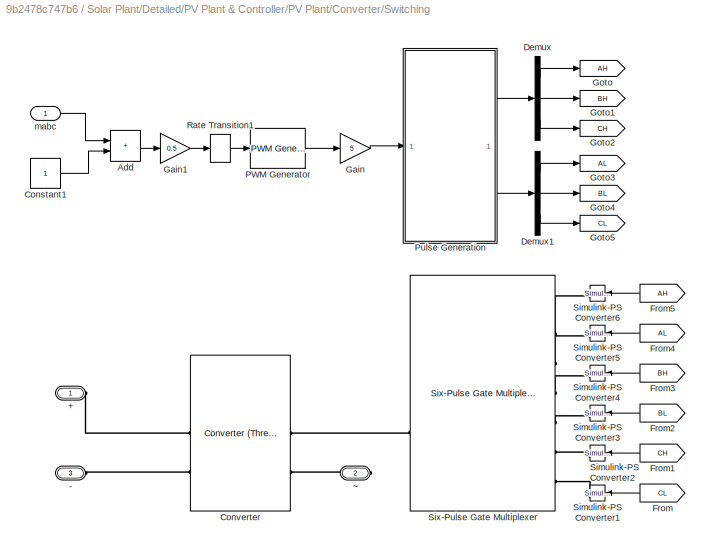
BLOCK [SubSystem] Solar Plant/Detailed/PV Plant & Controller/PV Plant/Converter/Switching
  VariantControl = Switching
BLOCK [PMIOPort] Solar Plant/Detailed/PV Plant & Controller/PV Plant/Converter/Switching/+
  Side = Left
BLOCK [PMIOPort] Solar Plant/Detailed/PV Plant & Controller/PV Plant/Converter/Switching/-
  Port = 3
  Side = Left
BLOCK [Sum] Solar Plant/Detailed/PV Plant & Controller/PV Plant/Converter/Switching/Add
  IconShape = rectangular
BLOCK [Constant] Solar Plant/Detailed/PV Plant & Controller/PV Plant/Converter/Switching/Constant1
BLOCK [Reference] Solar Plant/Detailed/PV Plant & Controller/PV Plant/Converter/Switching/Converter  REF=ee_lib/Semiconductors &
Converters/Converters/Converter
(Three-Phase)
  NameLocation = top
  SourceBlock = ee_lib/Semiconductors &\nConverters/Converters/Converter\n(Three-Phase)
  SourceType = Converter\n(Three-Phase)
BLOCK [Demux] Solar Plant/Detailed/PV Plant & Controller/PV Plant/Converter/Switching/Demux
  Outputs = 3
BLOCK [Demux] Solar Plant/Detailed/PV Plant & Controller/PV Plant/Converter/Switching/Demux1
  Outputs = 3
BLOCK [From] Solar Plant/Detailed/PV Plant & Controller/PV Plant/Converter/Switching/From
  GotoTag = CL
  NameLocation = top
BLOCK [From] Solar Plant/Detailed/PV Plant & Controller/PV Plant/Converter/Switching/From1
  GotoTag = CH
  NameLocation = top
BLOCK [From] Solar Plant/Detailed/PV Plant & Controller/PV Plant/Converter/Switching/From2
  GotoTag = BL
  NameLocation = top
BLOCK [From] Solar Plant/Detailed/PV Plant & Controller/PV Plant/Converter/Switching/From3
  GotoTag = BH
  NameLocation = top
BLOCK [From] Solar Plant/Detailed/PV Plant & Controller/PV Plant/Converter/Switching/From4
  GotoTag = AL
  NameLocation = top
BLOCK [From] Solar Plant/Detailed/PV Plant & Controller/PV Plant/Converter/Switching/From5
  GotoTag = AH
  NameLocation = top
BLOCK [Gain] Solar Plant/Detailed/PV Plant & Controller/PV Plant/Converter/Switching/Gain
  Gain = 5
BLOCK [Gain] Solar Plant/Detailed/PV Plant & Controller/PV Plant/Converter/Switching/Gain1
  Gain = 0.5
BLOCK [Goto] Solar Plant/Detailed/PV Plant & Controller/PV Plant/Converter/Switching/Goto
  GotoTag = AH
BLOCK [Goto] Solar Plant/Detailed/PV Plant & Controller/PV Plant/Converter/Switching/Goto1
  GotoTag = BH
BLOCK [Goto] Solar Plant/Detailed/PV Plant & Controller/PV Plant/Converter/Switching/Goto2
  GotoTag = CH
BLOCK [Goto] Solar Plant/Detailed/PV Plant & Controller/PV Plant/Converter/Switching/Goto3
  GotoTag = AL
BLOCK [Goto] Solar Plant/Detailed/PV Plant & Controller/PV Plant/Converter/Switching/Goto4
  GotoTag = BL
BLOCK [Goto] Solar Plant/Detailed/PV Plant & Controller/PV Plant/Converter/Switching/Goto5
  GotoTag = CL
BLOCK [Reference] Solar Plant/Detailed/PV Plant & Controller/PV Plant/Converter/Switching/PWM Generator  REF=eePwmGenerator/PWM Generator
  SourceBlock = eePwmGenerator/PWM Generator
  SourceType = PWM Generator
BLOCK [SubSystem] Solar Plant/Detailed/PV Plant & Controller/PV Plant/Converter/Switching/Pulse Generation
BLOCK [Constant] Solar Plant/Detailed/PV Plant & Controller/PV Plant/Converter/Switching/Pulse Generation/Constant
  Value = 5
BLOCK [Inport] Solar Plant/Detailed/PV Plant & Controller/PV Plant/Converter/Switching/Pulse Generation/G
BLOCK [Outport] Solar Plant/Detailed/PV Plant & Controller/PV Plant/Converter/Switching/Pulse Generation/G1
  VectorParamsAs1DForOutWhenUnconnected = off
BLOCK [Outport] Solar Plant/Detailed/PV Plant & Controller/PV Plant/Converter/Switching/Pulse Generation/G2
  Port = 2
  VectorParamsAs1DForOutWhenUnconnected = off
BLOCK [Sum] Solar Plant/Detailed/PV Plant & Controller/PV Plant/Converter/Switching/Pulse Generation/Subtract
  IconShape = rectangular
  Inputs = -+
BLOCK [RateTransition] Solar Plant/Detailed/PV Plant & Controller/PV Plant/Converter/Switching/Rate Transition1
  OutPortSampleTime = 1/(10*fSw*1000)
BLOCK [Reference] Solar Plant/Detailed/PV Plant & Controller/PV Plant/Converter/Switching/Simulink-PS Converter1  REF=nesl_utility/Simulink-PS
Converter
  NameLocation = top
  SourceBlock = nesl_utility/Simulink-PS\nConverter
  SourceType = Simulink-PS\nConverter
BLOCK [Reference] Solar Plant/Detailed/PV Plant & Controller/PV Plant/Converter/Switching/Simulink-PS Converter2  REF=nesl_utility/Simulink-PS
Converter
  NameLocation = top
  SourceBlock = nesl_utility/Simulink-PS\nConverter
  SourceType = Simulink-PS\nConverter
BLOCK [Reference] Solar Plant/Detailed/PV Plant & Controller/PV Plant/Converter/Switching/Simulink-PS Converter3  REF=nesl_utility/Simulink-PS
Converter
  NameLocation = top
  SourceBlock = nesl_utility/Simulink-PS\nConverter
  SourceType = Simulink-PS\nConverter
BLOCK [Reference] Solar Plant/Detailed/PV Plant & Controller/PV Plant/Converter/Switching/Simulink-PS Converter4  REF=nesl_utility/Simulink-PS
Converter
  NameLocation = top
  SourceBlock = nesl_utility/Simulink-PS\nConverter
  SourceType = Simulink-PS\nConverter
BLOCK [Reference] Solar Plant/Detailed/PV Plant & Controller/PV Plant/Converter/Switching/Simulink-PS Converter5  REF=nesl_utility/Simulink-PS
Converter
  NameLocation = top
  SourceBlock = nesl_utility/Simulink-PS\nConverter
  SourceType = Simulink-PS\nConverter
BLOCK [Reference] Solar Plant/Detailed/PV Plant & Controller/PV Plant/Converter/Switching/Simulink-PS Converter6  REF=nesl_utility/Simulink-PS
Converter
  NameLocation = top
  SourceBlock = nesl_utility/Simulink-PS\nConverter
  SourceType = Simulink-PS\nConverter
BLOCK [Reference] Solar Plant/Detailed/PV Plant & Controller/PV Plant/Converter/Switching/Six-Pulse Gate Multiplexer  REF=ee_lib/Semiconductors &
Converters/Converters/Six-Pulse Gate
Multiplexer
  NameLocation = top
  SourceBlock = ee_lib/Semiconductors &\nConverters/Converters/Six-Pulse Gate\nMultiplexer
  SourceType = Six-Pulse Gate\nMultiplexer
BLOCK [Inport] Solar Plant/Detailed/PV Plant & Controller/PV Plant/Converter/Switching/mabc
BLOCK [PMIOPort] Solar Plant/Detailed/PV Plant & Controller/PV Plant/Converter/Switching/~
  Port = 2
  Side = Right
BLOCK [Inport] Solar Plant/Detailed/PV Plant & Controller/PV Plant/Converter/mabc
BLOCK [PMIOPort] Solar Plant/Detailed/PV Plant & Controller/PV Plant/Converter/~
  NameLocation = top
  Port = 3
  Side = Right
BLOCK [Reference] Solar Plant/Detailed/PV Plant & Controller/PV Plant/Current Sensor  REF=fl_lib/Electrical/Electrical Sensors/Current Sensor
  NameLocation = top
  SourceBlock = fl_lib/Electrical/Electrical Sensors/Current Sensor
  SourceType = Current Sensor
BLOCK [Reference] Solar Plant/Detailed/PV Plant & Controller/PV Plant/DC- Capacitor  REF=fl_lib/Electrical/Electrical Elements/Capacitor
  NameLocation = left
  SourceBlock = fl_lib/Electrical/Electrical Elements/Capacitor
  SourceType = Capacitor
BLOCK [Reference] Solar Plant/Detailed/PV Plant & Controller/PV Plant/ERef1  REF=fl_lib/Electrical/Electrical Elements/Electrical Reference
  NameLocation = right
  SourceBlock = fl_lib/Electrical/Electrical Elements/Electrical Reference
  SourceType = Electrical Reference
BLOCK [Outport] Solar Plant/Detailed/PV Plant & Controller/PV Plant/I
BLOCK [PMIOPort] Solar Plant/Detailed/PV Plant & Controller/PV Plant/Ir
  NameLocation = top
  Port = 2
  Side = Left
BLOCK [Reference] Solar Plant/Detailed/PV Plant & Controller/PV Plant/PS-Simulink Converter  REF=nesl_utility/PS-Simulink
Converter
  SourceBlock = nesl_utility/PS-Simulink\nConverter
  SourceType = PS-Simulink\nConverter
BLOCK [Reference] Solar Plant/Detailed/PV Plant & Controller/PV Plant/PS-Simulink Converter1  REF=nesl_utility/PS-Simulink
Converter
  NameLocation = left
  SourceBlock = nesl_utility/PS-Simulink\nConverter
  SourceType = PS-Simulink\nConverter
BLOCK [Reference] Solar Plant/Detailed/PV Plant & Controller/PV Plant/PV Array  REF=ee_lib/Sources/Solar Cell
  AttributesFormatString = Tata_Power_Solar:TP300
  NameLocation = right
  SourceBlock = ee_lib/Sources/Solar Cell
  SourceType = Solar Cell
BLOCK [Outport] Solar Plant/Detailed/PV Plant & Controller/PV Plant/V
  NameLocation = left
  Port = 2
BLOCK [Reference] Solar Plant/Detailed/PV Plant & Controller/PV Plant/Voltage Sensor  REF=fl_lib/Electrical/Electrical Sensors/Voltage Sensor
  NameLocation = left
  SourceBlock = fl_lib/Electrical/Electrical Sensors/Voltage Sensor
  SourceType = Voltage Sensor
BLOCK [Inport] Solar Plant/Detailed/PV Plant & Controller/PV Plant/mabc
BLOCK [Inport] Solar Plant/Detailed/PV Plant & Controller/Pref
  Port = 2
BLOCK [Inport] Solar Plant/Detailed/PV Plant & Controller/Qref
  Port = 3
BLOCK [Scope] Solar Plant/Detailed/PV Plant & Controller/Scope1
  ActiveDisplayYMaximum = 2.29234
  ActiveDisplayYMinimum = -2.35685
  DataLoggingVariableName = ScopeData4
  Floating = off
  GraphicalSettings = {"GraphicalSettings":{"LegacySettings":true,"Style":{"AxesScalingProperties":{"ScaleAxesLimitsAtStop":false},"Style":{"AxesColor":"[0 0 0]","ChannelNames":[""],"ColorOrder":"[1 0.909803921568627 0.392156862745098;0.149019607843137 0.549019607843137 0.866666666666667;0.96078431372549 0.466666666666667 0.16078431372549;0.286274509803922 0.858823529411765 0.250980392156863;0.752941176470588 0.3607843...<+584ch>
  MultipleDisplayCache = [{"MaxYLimMag":2.35685,"MaxYLimReal":2.29234,"MinYLimMag":0,"MinYLimReal":-2.35685,"PlotAsMagnitudePhase":false,"ShowGrid":true,"ShowLegend":false,"Title":"%<SignalLabel>","YLabel":""}]
  NumInputPorts = 1
  WasSavedAsWebScope = on
BLOCK [SubSystem] Solar Plant/Detailed/PV Plant & Controller/Sensor Dynamics
BLOCK [SubSystem] Solar Plant/Detailed/PV Plant & Controller/Sensor Dynamics/Current Measurement
BLOCK [Reference] Solar Plant/Detailed/PV Plant & Controller/Sensor Dynamics/Current Measurement/Lead-Lag (Discrete or Continuous)  REF=eeGeneralControl/Lead-Lag
(Discrete or Continuous)
  SourceBlock = eeGeneralControl/Lead-Lag\n(Discrete or Continuous)
  SourceType = Lead-Lag (Discrete or Continuous)
BLOCK [Outport] Solar Plant/Detailed/PV Plant & Controller/Sensor Dynamics/Current Measurement/V
BLOCK [Inport] Solar Plant/Detailed/PV Plant & Controller/Sensor Dynamics/Current Measurement/u
BLOCK [Outport] Solar Plant/Detailed/PV Plant & Controller/Sensor Dynamics/I
BLOCK [Inport] Solar Plant/Detailed/PV Plant & Controller/Sensor Dynamics/Iin
BLOCK [Product] Solar Plant/Detailed/PV Plant & Controller/Sensor Dynamics/Product
BLOCK [Scope] Solar Plant/Detailed/PV Plant & Controller/Sensor Dynamics/Scope
  ActiveDisplayYMaximum = 5.50264896669E+6
  ActiveDisplayYMinimum = -1.17977100562E+6
  DataLoggingVariableName = ScopeData5
  Floating = off
  GraphicalSettings = {"GraphicalSettings":{"LegacySettings":true,"Style":{"AxesScalingProperties":{"ScaleAxesLimitsAtStop":false},"Style":{"AxesColor":"[0 0 0]","ChannelNames":[""],"ColorOrder":"[1 0.909803921568627 0.392156862745098;0.149019607843137 0.549019607843137 0.866666666666667;0.96078431372549 0.466666666666667 0.16078431372549;0.286274509803922 0.858823529411765 0.250980392156863;0.752941176470588 0.3607843...<+557ch>
  MultipleDisplayCache = [{"MaxYLimMag":5.50264896669E+6,"MaxYLimReal":5.50264896669E+6,"MinYLimMag":0,"MinYLimReal":-1.17977100562E+6,"PlotAsMagnitudePhase":false,"ShowGrid":true,"ShowLegend":false,"Title":"%<SignalLabel>","YLabel":""}]
  NumInputPorts = 1
  WasSavedAsWebScope = on
BLOCK [Outport] Solar Plant/Detailed/PV Plant & Controller/Sensor Dynamics/V
  Port = 2
BLOCK [Inport] Solar Plant/Detailed/PV Plant & Controller/Sensor Dynamics/Vin
  Port = 2
BLOCK [SubSystem] Solar Plant/Detailed/PV Plant & Controller/Sensor Dynamics/Voltage Measurement
BLOCK [Outport] Solar Plant/Detailed/PV Plant & Controller/Sensor Dynamics/Voltage Measurement/I
BLOCK [Reference] Solar Plant/Detailed/PV Plant & Controller/Sensor Dynamics/Voltage Measurement/Lead-Lag (Discrete or Continuous)  REF=eeGeneralControl/Lead-Lag
(Discrete or Continuous)
  SourceBlock = eeGeneralControl/Lead-Lag\n(Discrete or Continuous)
  SourceType = Lead-Lag (Discrete or Continuous)
BLOCK [Inport] Solar Plant/Detailed/PV Plant & Controller/Sensor Dynamics/Voltage Measurement/u
BLOCK [Reference] Solar Plant/Detailed/PV Plant & Controller/Simulink-PS Converter  REF=nesl_utility/Simulink-PS
Converter
  SourceBlock = nesl_utility/Simulink-PS\nConverter
  SourceType = Simulink-PS\nConverter
BLOCK [Inport] Solar Plant/Detailed/PV Plant & Controller/Vabc
  Port = 4
BLOCK [PMIOPort] Solar Plant/Detailed/PV Plant & Controller/abc
  Side = Right
BLOCK [Inport] Solar Plant/Detailed/Pref
  Port = 3
BLOCK [Inport] Solar Plant/Detailed/Qref
  Port = 4
BLOCK [Inport] Solar Plant/Detailed/T
  Port = 2
BLOCK [Terminator] Solar Plant/Detailed/Terminator
BLOCK [PMIOPort] Solar Plant/Detailed/~
  NameLocation = top
  Side = Right
BLOCK [Inport] Solar Plant/Ir
BLOCK [Outport] Solar Plant/Meas
BLOCK [Inport] Solar Plant/Mode
  Port = 5
BLOCK [Inport] Solar Plant/Pref
  Port = 3
BLOCK [Inport] Solar Plant/Qref
  Port = 4
BLOCK [SubSystem] Solar Plant/Simplified
  VariantControl = Simplified
BLOCK [Outport] Solar Plant/Simplified/Bus Element Out
BLOCK [Outport] Solar Plant/Simplified/BusElementOut
BLOCK [Outport] Solar Plant/Simplified/BusElementOut1
BLOCK [Outport] Solar Plant/Simplified/BusElementOut2
BLOCK [Inport] Solar Plant/Simplified/Ir
BLOCK [SubSystem] Solar Plant/Simplified/Measurements
BLOCK [Reference] Solar Plant/Simplified/Measurements/Current and Voltage Sensor (Three-Phase)5  REF=ee_lib/Sensors &
Transducers/Current and Voltage
Sensor (Three-Phase)
  SourceBlock = ee_lib/Sensors &\nTransducers/Current and Voltage\nSensor (Three-Phase)
  SourceType = Current and Voltage\nSensor (Three-Phase)
BLOCK [Gain] Solar Plant/Simplified/Measurements/Gain
  Gain = 1/(plantRating*1000)
BLOCK [Gain] Solar Plant/Simplified/Measurements/Gain1
  Gain = 1/(plantRating*1000)
BLOCK [Outport] Solar Plant/Simplified/Measurements/I
  Port = 4
BLOCK [PMIOPort] Solar Plant/Simplified/Measurements/In
  Side = Left
BLOCK [Reference] Solar Plant/Simplified/Measurements/Low-Pass Filter (Discrete or Continuous)1  REF=eeGeneralControl/Low-Pass Filter
(Discrete or Continuous)
  SourceBlock = eeGeneralControl/Low-Pass Filter\n(Discrete or Continuous)
  SourceType = Low-Pass Filter (Discrete or Continuous)
BLOCK [Reference] Solar Plant/Simplified/Measurements/Low-Pass Filter (Discrete or Continuous)2  REF=eeGeneralControl/Low-Pass Filter
(Discrete or Continuous)
  SourceBlock = eeGeneralControl/Low-Pass Filter\n(Discrete or Continuous)
  SourceType = Low-Pass Filter (Discrete or Continuous)
BLOCK [Outport] Solar Plant/Simplified/Measurements/P
BLOCK [Reference] Solar Plant/Simplified/Measurements/PS-Simulink Converter  REF=nesl_utility/PS-Simulink
Converter
  SourceBlock = nesl_utility/PS-Simulink\nConverter
  SourceType = PS-Simulink\nConverter
BLOCK [Reference] Solar Plant/Simplified/Measurements/PS-Simulink Converter1  REF=nesl_utility/PS-Simulink
Converter
  SourceBlock = nesl_utility/PS-Simulink\nConverter
  SourceType = PS-Simulink\nConverter
BLOCK [Reference] Solar Plant/Simplified/Measurements/PS-Simulink Converter2  REF=nesl_utility/PS-Simulink
Converter
  SourceBlock = nesl_utility/PS-Simulink\nConverter
  SourceType = PS-Simulink\nConverter
BLOCK [Reference] Solar Plant/Simplified/Measurements/PS-Simulink Converter3  REF=nesl_utility/PS-Simulink
Converter
  SourceBlock = nesl_utility/PS-Simulink\nConverter
  SourceType = PS-Simulink\nConverter
BLOCK [Reference] Solar Plant/Simplified/Measurements/Power Sensor (Three-Phase)  REF=ee_lib/Sensors &
Transducers/Power Sensor
(Three-Phase)
  SourceBlock = ee_lib/Sensors &\nTransducers/Power Sensor\n(Three-Phase)
  SourceType = Power Sensor\n(Three-Phase)
BLOCK [Outport] Solar Plant/Simplified/Measurements/Q
  Port = 2
BLOCK [Outport] Solar Plant/Simplified/Measurements/V
  Port = 3
BLOCK [PMIOPort] Solar Plant/Simplified/Measurements/~
  Port = 2
  Side = Right
BLOCK [Inport] Solar Plant/Simplified/Mode
  Port = 5
BLOCK [Inport] Solar Plant/Simplified/Pref
  Port = 3
BLOCK [Inport] Solar Plant/Simplified/Qref
  Port = 4
BLOCK [Reference] Solar Plant/Simplified/Simulink-PS Converter  REF=nesl_utility/Simulink-PS
Converter
  SourceBlock = nesl_utility/Simulink-PS\nConverter
  SourceType = Simulink-PS\nConverter
BLOCK [Reference] Solar Plant/Simplified/Simulink-PS Converter1  REF=nesl_utility/Simulink-PS
Converter
  SourceBlock = nesl_utility/Simulink-PS\nConverter
  SourceType = Simulink-PS\nConverter
BLOCK [Reference] Solar Plant/Simplified/Simulink-PS Converter2  REF=nesl_utility/Simulink-PS
Converter
  SourceBlock = nesl_utility/Simulink-PS\nConverter
  SourceType = Simulink-PS\nConverter
BLOCK [Reference] Solar Plant/Simplified/Simulink-PS Converter3  REF=nesl_utility/Simulink-PS
Converter
  SourceBlock = nesl_utility/Simulink-PS\nConverter
  SourceType = Simulink-PS\nConverter
BLOCK [Reference] Solar Plant/Simplified/Simulink-PS Converter4  REF=nesl_utility/Simulink-PS
Converter
  SourceBlock = nesl_utility/Simulink-PS\nConverter
  SourceType = Simulink-PS\nConverter
BLOCK [Inport] Solar Plant/Simplified/T
  Port = 2
BLOCK [Reference] Solar Plant/Simplified/solar_plant  REF=custom_lib/solar_plant  (lib defined in slx_304375ac1573)
  SourceBlock = custom_lib/solar_plant
  SourceType = solar_plant
BLOCK [PMIOPort] Solar Plant/Simplified/~
  NameLocation = top
  Side = Right
BLOCK [Inport] Solar Plant/T
  Port = 2
BLOCK [PMIOPort] Solar Plant/~
  NameLocation = top
  Side = Right
BLOCK [Reference] Solver Configuration  REF=nesl_utility/Solver
Configuration
  NameLocation = top
  SourceBlock = nesl_utility/Solver\nConfiguration
  SourceType = Solver\nConfiguration
BLOCK [Reference] Two-Winding Transformer (Three-Phase)  REF=ee_lib/Passive/Transformers/Two-Winding
Transformer
(Three-Phase)
  SourceBlock = ee_lib/Passive/Transformers/Two-Winding\nTransformer\n(Three-Phase)
  SourceType = Two-Winding\nTransformer\n(Three-Phase)
BLOCK [Reference] Voltage Source (Three-Phase)  REF=ee_lib/Sources/Voltage
Source
(Three-Phase)
  NameLocation = top
  SourceBlock = ee_lib/Sources/Voltage\nSource\n(Three-Phase)
  SourceType = Voltage\nSource\n(Three-Phase)
ANNOTATION Solar Plant/Detailed/PV Plant & Controller: Plant
ANNOTATION Solar Plant/Detailed/PV Plant & Controller: Controller
ANNOTATION Solar Plant/Detailed/PV Plant & Controller/Controller/MPPT/Solar PV Controller: DQ/abc Transformation
ANNOTATION Solar Plant/Detailed/PV Plant & Controller/Controller/MPPT/Solar PV Controller/DC voltage controller & current reference: Limiter
ANNOTATION Solar Plant/Detailed/PV Plant & Controller/Controller/MPPT/Solar PV Controller/DC voltage controller & current reference: id_ref_generator
ANNOTATION Solar Plant/Detailed/PV Plant & Controller/Controller/MPPT/Solar PV Controller/DC voltage controller & current reference: iq_ref_generator
ANNOTATION Solar Plant/Detailed/PV Plant & Controller/Controller/MPPT/Solar PV Controller/DC voltage controller & current reference/If Action Subsystem: id_ref_generator
ANNOTATION Solar Plant/Detailed/PV Plant & Controller/Controller/MPPT/Solar PV Controller/DC voltage controller & current reference/If Action Subsystem: iq_ref_generator
ANNOTATION Solar Plant/Detailed/PV Plant & Controller/Controller/Power Reference/Power Reference Controller/Power Reference Controller/Reference Current: Avoid division by zero during start
ANNOTATION Solar Plant/Detailed/PV Plant & Controller/Controller/Power Reference/Power Reference Controller/Power Reference Controller/Reference Current: Current Limiters
LINE Bus Selector:1 -> Scope1:1
LINE Bus Selector:2 -> Scope1:2
LINE Constant1:1 -> Solar Plant:4
LINE Constant2:1 -> Solar Plant:2
LINE Constant3:1 -> Solar Plant:5
LINE Constant4:1 -> Solar Plant:3
LINE Constant:1 -> Solar Plant:1
LINE Solar Plant:1 -> Bus Selector:1
PNET net1: Electrical Reference:LConn1 -- Solver Configuration:RConn1 -- Voltage Source (Three-Phase):LConn1
PLINE Solar Plant:RConn1 -- Two-Winding Transformer (Three-Phase):LConn1
PLINE Two-Winding Transformer (Three-Phase):RConn1 -- Voltage Source (Three-Phase):RConn1
note: PNET lines group multi-terminal physical nets as a canonical sorted terminal list (undirected conserving connections); 2-terminal nets keep the pairwise PLINE form
